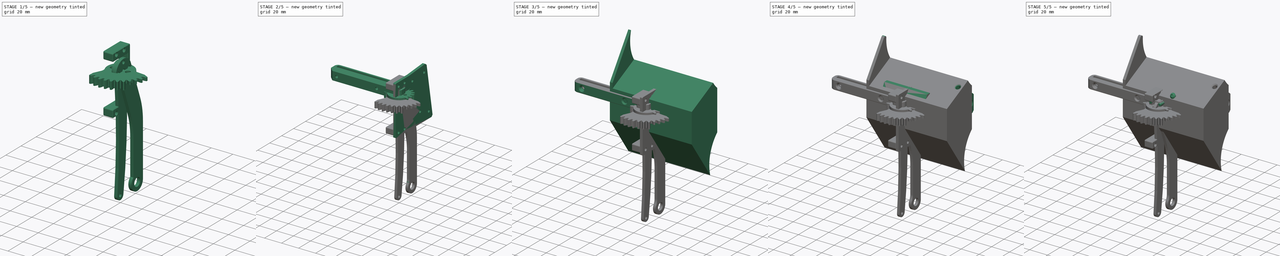
[diagram: build sequence overview — one tinted view per stage of 5, left to right]
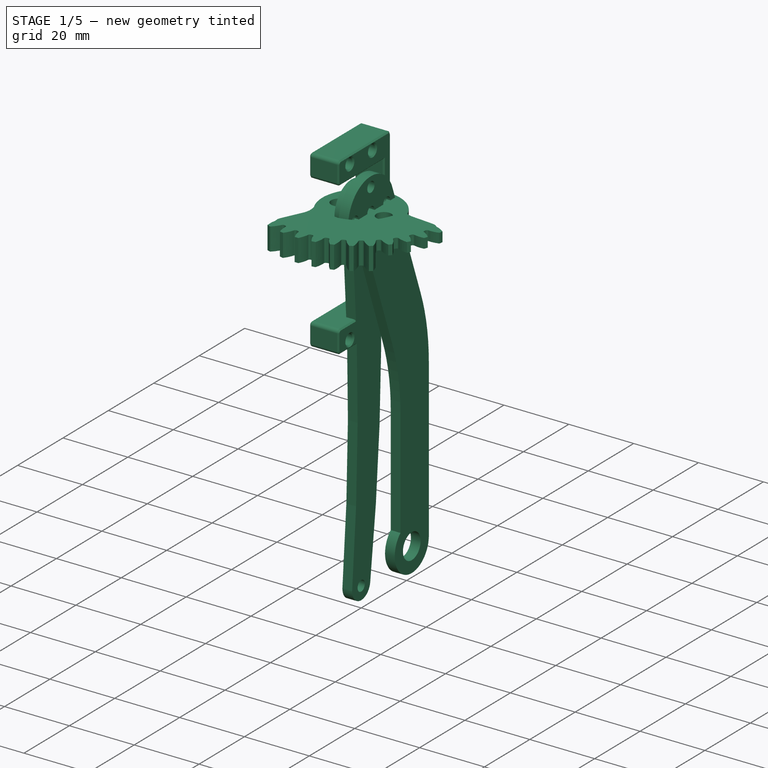
[diagram: stage 1 of 5 — iso view after this stage's code; geometry added in this stage tinted green]
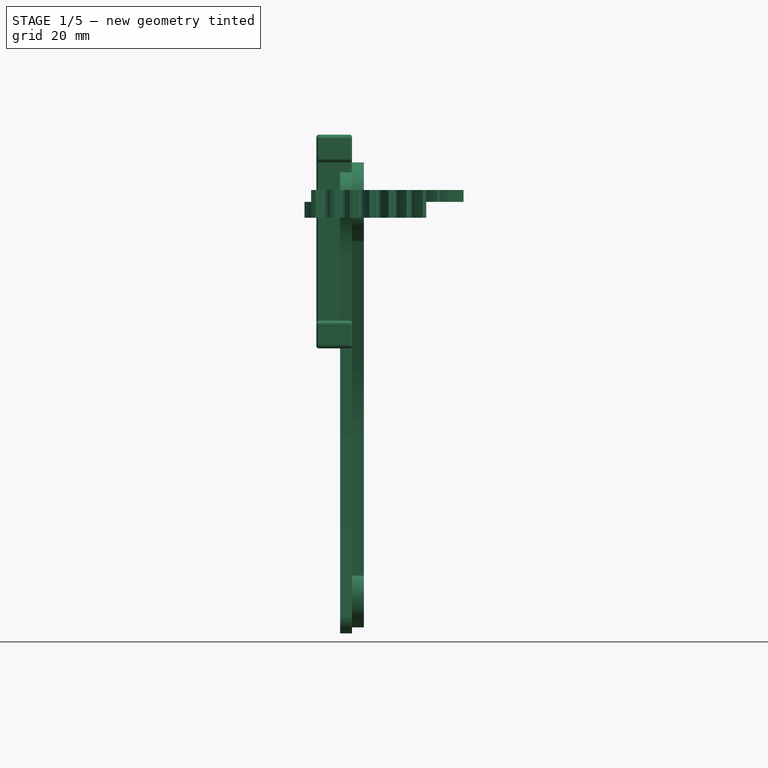
[diagram: stage 1 of 5 — front view after this stage's code; geometry added in this stage tinted green]
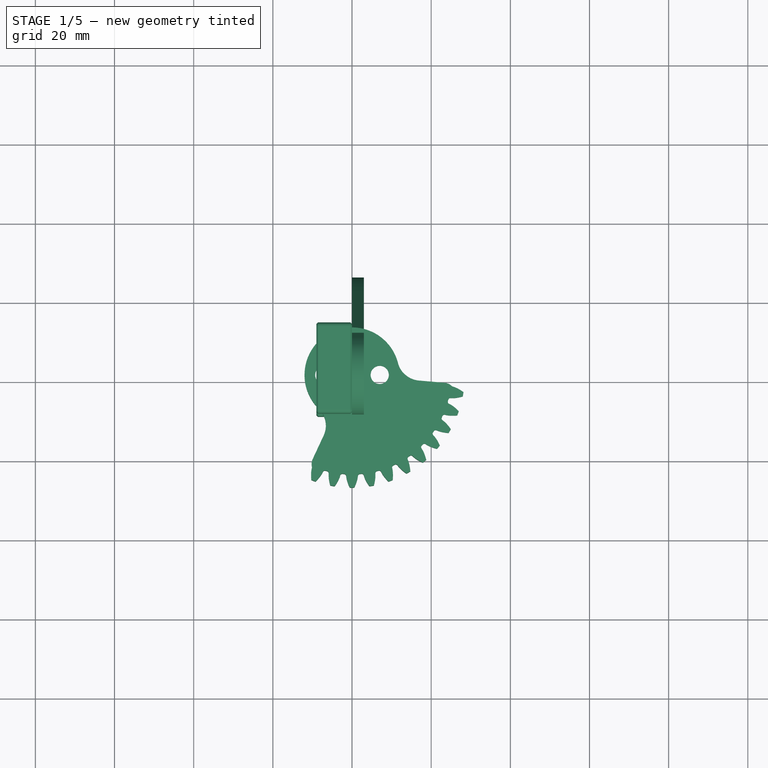
[diagram: stage 1 of 5 — top view after this stage's code; geometry added in this stage tinted green]
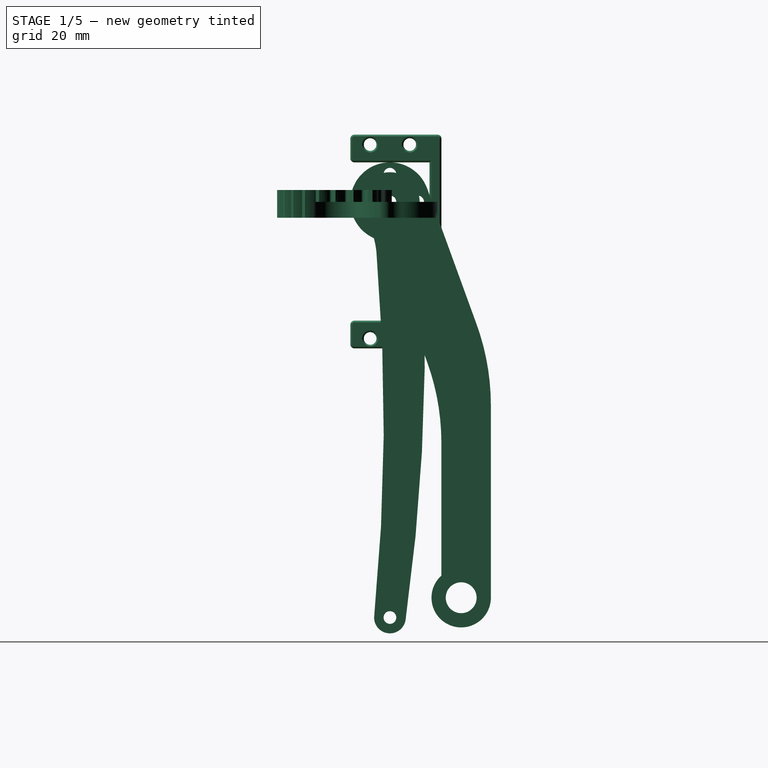
[diagram: stage 1 of 5 — right view after this stage's code; geometry added in this stage tinted green]
FCSTD DOCUMENT  (FreeCAD 1.2R20251223 (Git shallow))
Label: lifter
License: All rights reserved
LicenseURL: http://en.wikipedia.org/wiki/All_rights_reserved
objects: Sketcher::SketchObject×34, PartDesign::Pocket×25, App::Point×24, App::Link×19, PartDesign::Fillet×17, PartDesign::Chamfer×17, App::Part×14, Part::FeaturePython×13, PartDesign::Pad×12, TechDraw::DrawProjGroupItem×11, TechDraw::DrawProjGroup×11, PartDesign::Body×10, TechDraw::DrawSVGTemplate×4, TechDraw::DrawPage×4, App::DocumentObjectGroup×3, PartDesign::Plane×2, Part::Part2DObjectPython×2, PartDesign::ShapeBinder×1
note: 309 computed .brp shape members not serialized (recipe doc carries the construction recipe); baked Part::Feature solids carry a one-line shape summary decoded from their .brp
EXTERNAL_REF file=../mechanical-parts/generic-hardware.FCStd obj=Part015
EXTERNAL_REF file=../mechanical-parts/generic-hardware.FCStd obj=Body042
EXTERNAL_REF file=../mechanical-parts/generic-hardware.FCStd obj=Part034
EXTERNAL_REF file=../mechanical-parts/generic-hardware.FCStd obj=Body112
EXTERNAL_REF file=../mechanical-parts/generic-hardware.FCStd obj=Part__Feature001
EXTERNAL_REF file=../mechanical-parts/generic-hardware.FCStd obj=Body115
EXTERNAL_REF file=../mechanical-parts/generic-hardware.FCStd obj=Body116
EXTERNAL_REF file=../mechanical-parts/generic-hardware.FCStd obj=Part052

FEATURE [Sketcher::SketchObject] Sketch044
  ArcFitTolerance = 0
  ExternalTypes = [0]
  FullyConstrained = true
  MakeInternals = false
  MapMode = 5
  Placement = pos=(0,0,0) rot=(0.57735,0.57735,0.57735;2.0944rad)
  sketch-geometry (22):
    g0: LineSegment [constr] StartX=10 StartY=-37 StartZ=0 EndX=10 EndY=17 EndZ=0
    g1: LineSegment [constr] StartX=10 StartY=17 StartZ=0 EndX=-10 EndY=17 EndZ=0
    g2: LineSegment [constr] StartX=-10 StartY=17 StartZ=0 EndX=-10 EndY=-37 EndZ=0
    g3: LineSegment [constr] StartX=-10 StartY=-37 StartZ=0 EndX=10 EndY=-37 EndZ=0
    g4: GeomPoint [constr] X=0 Y=-10 Z=0
    g5: LineSegment StartX=-10 StartY=17 StartZ=0 EndX=13 EndY=17 EndZ=0
    g6: LineSegment StartX=13 StartY=17 StartZ=0 EndX=13 EndY=-37 EndZ=0
    g7: LineSegment StartX=13 StartY=-37 StartZ=0 EndX=-10 EndY=-37 EndZ=0
    g8: LineSegment StartX=-10 StartY=-37 StartZ=0 EndX=-10 EndY=-30 EndZ=0
    g9: LineSegment StartX=-10 StartY=-30 StartZ=0 EndX=10 EndY=-30 EndZ=0
    g10: LineSegment StartX=10 StartY=-30 StartZ=0 EndX=10 EndY=10 EndZ=0
    g11: LineSegment StartX=10 StartY=10 StartZ=0 EndX=-10 EndY=10 EndZ=0
    g12: LineSegment StartX=-10 StartY=10 StartZ=0 EndX=-10 EndY=17 EndZ=0
    g13: Circle CenterX=-5 CenterY=14.5 CenterZ=0 NormalX=0 NormalY=0 NormalZ=1 AngleXU=0 Radius=1.6
    g14: Circle CenterX=5 CenterY=14.5 CenterZ=0 NormalX=0 NormalY=0 NormalZ=1 AngleXU=0 Radius=1.6
    g15: Circle CenterX=-5 CenterY=-34.5 CenterZ=0 NormalX=0 NormalY=0 NormalZ=1 AngleXU=0 Radius=1.6
    g16: Circle CenterX=5 CenterY=-34.5 CenterZ=0 NormalX=0 NormalY=0 NormalZ=1 AngleXU=0 Radius=1.6
    g17: LineSegment [constr] StartX=-5 StartY=-34.5 StartZ=0 EndX=5 EndY=-34.5 EndZ=0
    g18: LineSegment [constr] StartX=5 StartY=-34.5 StartZ=0 EndX=5 EndY=14.5 EndZ=0
    g19: LineSegment [constr] StartX=5 StartY=14.5 StartZ=0 EndX=-5 EndY=14.5 EndZ=0
    g20: LineSegment [constr] StartX=-5 StartY=14.5 StartZ=0 EndX=-5 EndY=-34.5 EndZ=0
    g21: GeomPoint [constr] X=0 Y=-10 Z=0
  constraints (55):
    c: Coincident(g0,g1)
    c: Coincident(g1,g2)
    c: Coincident(g2,g3)
    c: Coincident(g3,g0)
    c: Vertical(g0)
    c: Vertical(g2)
    c: Horizontal(g1)
    c: Horizontal(g3)
    c: Symmetric(g2,g0,g4)
    c: PointOnObject(g4,g-2)
    c: DistanceY(g-1,g1) = 17
    c: DistanceX(g1,g1) = 20
    c: Coincident(g1,g5)
    c: Horizontal(g5)
    c: Coincident(g5,g6)
    c: Vertical(g6)
    c: Coincident(g6,g7)
    c: Coincident(g7,g2)
    c: Horizontal(g7)
    c: Coincident(g7,g8)
    c: PointOnObject(g8,g2)
    c: Coincident(g8,g9)
    c: PointOnObject(g9,g0)
    c: Horizontal(g9)
    c: Coincident(g9,g10)
    c: PointOnObject(g10,g0)
    c: Coincident(g10,g11)
    c: PointOnObject(g11,g2)
    c: Horizontal(g11)
    c: Coincident(g11,g12)
    c: Coincident(g12,g5)
    c: DistanceY(g-1,g10) = 10
    c: Equal(g12,g8)
    c: Distance(g5,g0) = 3
    c: Equal(g16,g15)
    c: Equal(g15,g13)
    c: Equal(g13,g14)
    c: Diameter(g13) = 3.2
    c: Coincident(g17,g18)
    c: Coincident(g18,g19)
    c: Coincident(g19,g20)
    c: Coincident(g20,g17)
    c: Horizontal(g17)
    c: Horizontal(g19)
    c: Vertical(g18)
    c: Vertical(g20)
    c: Symmetric(g19,g17,g21)
    c: Coincident(g21,g4)
    c: Coincident(g18,g14)
    c: Coincident(g17,g16)
    c: Coincident(g15,g17)
    c: Coincident(g19,g13)
    c: DistanceX(g19,g19) = 10
    c: DistanceY(g-1,g14) = 14.5
    c: DistanceY(g2,g-1) = 37
FEATURE [PartDesign::Pad] Pad025
  Direction = (1,1e-16,-1e-16)
  Length = 9
  Length2 = 10
  Placement = pos=(0,0,0) rot=(0.57735,0.57735,0.57735;2.0944rad)
  Profile = -> Sketch044
  ReferenceAxis = -> Sketch044 [N_Axis]
  Refine = true
  Reversed = true
  SideType = 0
  Suppressed = false
  Type = 0
  Type2 = 0
FEATURE [PartDesign::Fillet] Fillet013
  Base = -> Pad025 [Edge1,Edge20,Edge11,Edge8,Edge5,Edge2]
  BaseFeature = -> Pad025
  Placement = pos=(0,0,0) rot=(0.57735,0.57735,0.57735;2.0944rad)
  Radius = 1
  Refine = true
  SupportTransform = false
  Suppressed = false
  UseAllEdges = false
FEATURE [PartDesign::Chamfer] Chamfer007
  Angle = 45
  Base = -> Fillet013 [Face2,Face5]
  BaseFeature = -> Fillet013
  ChamferType = 0
  FlipDirection = false
  Placement = pos=(0,0,0) rot=(0.57735,0.57735,0.57735;2.0944rad)
  Refine = true
  Size = 0.4
  Size2 = 1
  SupportTransform = false
  Suppressed = false
  UseAllEdges = false
FEATURE [App::Link] Link033  label="ClipRail001"
  LinkPlacement = pos=(0,-2.57492e-05,216) rot=(0,0,1;0rad)
  LinkedObject = -> Body026
  Placement = pos=(0,-2.57492e-05,216) rot=(0,0,1;0rad)
FEATURE [App::Link] Link034  label="ClipRail002"
  LinkPlacement = pos=(2.59299e-05,-8.10623e-06,136) rot=(0.866025,0.5,0;3.14159rad)
  LinkedObject = -> Body026
  Placement = pos=(2.59299e-05,-8.10623e-06,136) rot=(0.866025,0.5,0;3.14159rad)
FEATURE [Sketcher::SketchObject] Sketch049
  ArcFitTolerance = 0
  ExternalTypes = [0]
  FullyConstrained = true
  MakeInternals = false
  MapMode = 5
  Placement = pos=(0,0,0) rot=(0.57735,0.57735,0.57735;2.0944rad)
  sketch-geometry (14):
    g0: ArcOfCircle CenterX=0 CenterY=0 CenterZ=0 NormalX=0 NormalY=0 NormalZ=1 AngleXU=0 Radius=10 StartAngle=0.349066 EndAngle=4.53786
    g1: LineSegment StartX=9.39693 StartY=3.4202 StartZ=0 EndX=25.5 EndY=-40.8226 EndZ=0
    g2: LineSegment StartX=25.5 StartY=-40.8226 StartZ=0 EndX=25.5 EndY=-100 EndZ=0
    g3: LineSegment StartX=-1.73648 StartY=-9.84808 StartZ=0 EndX=13 EndY=-50.3362 EndZ=0
    g4: LineSegment StartX=13 StartY=-50.3362 StartZ=0 EndX=13 EndY=-94.4098 EndZ=0
    g5: ArcOfCircle CenterX=18 CenterY=-100 CenterZ=0 NormalX=0 NormalY=0 NormalZ=1 AngleXU=0 Radius=7.5 StartAngle=2.30052 EndAngle=6.28319
    g6: LineSegment [constr] StartX=0 StartY=0 StartZ=0 EndX=18 EndY=-100 EndZ=0
    g7: Circle [constr] CenterX=0 CenterY=0 CenterZ=0 NormalX=0 NormalY=0 NormalZ=1 AngleXU=0 Radius=7
    g8: Circle CenterX=0 CenterY=7 CenterZ=0 NormalX=0 NormalY=0 NormalZ=1 AngleXU=0 Radius=1.6
    g9: Circle CenterX=7 CenterY=0 CenterZ=0 NormalX=0 NormalY=0 NormalZ=1 AngleXU=0 Radius=1.6
    g10: Circle CenterX=0 CenterY=-7 CenterZ=0 NormalX=0 NormalY=0 NormalZ=1 AngleXU=0 Radius=1.6
    g11: Circle CenterX=-7 CenterY=0 CenterZ=0 NormalX=0 NormalY=0 NormalZ=1 AngleXU=0 Radius=1.6
    g12: Circle CenterX=0 CenterY=0 CenterZ=0 NormalX=0 NormalY=0 NormalZ=1 AngleXU=0 Radius=1.6
    g13: Circle CenterX=18 CenterY=-100 CenterZ=0 NormalX=0 NormalY=0 NormalZ=1 AngleXU=0 Radius=3.9
  constraints (37):
    c: Coincident(g0,g-1)
    c: Tangent(g0,g1) = 1.5708
    c: Coincident(g1,g2)
    c: Vertical(g2)
    c: Coincident(g3,g4)
    c: Vertical(g4)
    c: Radius(g0) = 10
    c: DistanceX(g0,g5) = 18
    c: Radius(g5) = 7.5
    c: Parallel(g1,g3)
    c: Coincident(g4,g5)
    c: DistanceX(g4,g5) = 5
    c: Tangent(g2,g5) = 1.5708
    c: Coincident(g3,g0)
    c: Distance(g1,g3) = 15
    c: Coincident(g6,g0)
    c: Coincident(g6,g5)
    c: Angle(g3,g4) = 2.79253
    c: DistanceY(g5,g0) = 100
    c: Coincident(g7,g0)
    c: Diameter(g7) = 14
    c: PointOnObject(g8,g7)
    c: PointOnObject(g9,g7)
    c: PointOnObject(g10,g7)
    c: PointOnObject(g11,g7)
    c: Coincident(g12,g0)
    c: Diameter(g12) = 3.2
    c: Equal(g12,g10)
    c: Equal(g10,g9)
    c: Equal(g9,g8)
    c: Equal(g8,g11)
    c: PointOnObject(g11,g-1)
    c: PointOnObject(g8,g-2)
    c: PointOnObject(g10,g-2)
    c: PointOnObject(g9,g-1)
    c: Coincident(g13,g5)
    c: Diameter(g13) = 7.8
FEATURE [PartDesign::Pad] Pad027
  Direction = (1,1e-16,-1e-16)
  Length = 3
  Length2 = 10
  Placement = pos=(0,0,0) rot=(0.57735,0.57735,0.57735;2.0944rad)
  Profile = -> Sketch049
  ReferenceAxis = -> Sketch049 [N_Axis]
  Refine = true
  SideType = 0
  Suppressed = false
  Type = 0
  Type2 = 0
FEATURE [PartDesign::Fillet] Fillet016
  Base = -> Pad027 [Edge5,Edge14]
  BaseFeature = -> Pad027
  Placement = pos=(0,0,0) rot=(0.57735,0.57735,0.57735;2.0944rad)
  Radius = 60
  Refine = true
  SupportTransform = false
  Suppressed = false
  UseAllEdges = false
FEATURE [App::DocumentObjectGroup] Group005  label="Visserie"
  Group = -> [Screw016,Screw017,Screw018,Screw]
FEATURE [Sketcher::SketchObject] Sketch
  ArcFitTolerance = 1e-06
  AttachmentSupport = -> [YZ_Plane051]
  ExternalTypes = [0]
  FullyConstrained = true
  MakeInternals = false
  MapMode = 5
  Placement = pos=(0,0,0) rot=(0.57735,0.57735,0.57735;2.0944rad)
  sketch-geometry (6):
    g0: Circle CenterX=0 CenterY=0 CenterZ=0 NormalX=0 NormalY=0 NormalZ=1 AngleXU=0 Radius=1.6
    g1: ArcOfCircle CenterX=0 CenterY=0 CenterZ=0 NormalX=0 NormalY=0 NormalZ=1 AngleXU=0 Radius=7.5 StartAngle=0.0732126 EndAngle=4.14985
    g2: ArcOfCircle CenterX=-501.561 CenterY=-55.6722 CenterZ=0 NormalX=0 NormalY=0 NormalZ=1 AngleXU=0 Radius=500 StartAngle=6.18437 EndAngle=6.382
    g3: ArcOfCircle CenterX=-491.181 CenterY=-36.025 CenterZ=0 NormalX=0 NormalY=0 NormalZ=1 AngleXU=0 Radius=500 StartAngle=6.14367 EndAngle=6.3564
    g4: ArcOfCircle CenterX=0 CenterY=-105 CenterZ=0 NormalX=0 NormalY=0 NormalZ=1 AngleXU=0 Radius=4 StartAngle=3.1416 EndAngle=6.14367
    g5: Circle CenterX=0 CenterY=-105 CenterZ=0 NormalX=0 NormalY=0 NormalZ=1 AngleXU=0 Radius=1.6
  constraints (17):
    c: Coincident(g0,g-1)
    c: Diameter(g0) = 3.2
    c: Coincident(g1,g0)
    c: Tangent(g3,g1) = -1.5708
    c: Radius(g1) = 7.5
    c: Coincident(g5,g4)
    c: Tangent(g4,g3) = -1.5708
    c: Diameter(g5) = 3.2
    c: Radius(g4) = 4
    c: PointOnObject(g4,g-2)
    c: DistanceY(g4,g0) = 105
    c: Radius(g2) = 500
    c: Radius(g3) = 500
    c: Coincident(g1,g2)
    c: DistanceX(g1,g0) = 4
    c: Coincident(g2,g4)
    c: Vertical(g2,g1)
FEATURE [PartDesign::Pad] Pad
  AlongSketchNormal = false
  Direction = (1,0,0)
  Length = 3
  Length2 = 10
  Placement = pos=(0,0,0) rot=(1,1,1;2.0944rad)
  Profile = -> Sketch
  ReferenceAxis = -> Sketch [N_Axis]
  Refine = true
  Reversed = true
  SideType = 0
  Suppressed = false
  Type = 0
  Type2 = 0
FEATURE [PartDesign::Fillet] Fillet
  Base = -> Pad [Edge2]
  BaseFeature = -> Pad
  Placement = pos=(0,0,0) rot=(1,1,1;2.0944rad)
  Radius = 20
  Refine = true
  SupportTransform = false
  Suppressed = false
  UseAllEdges = false
FEATURE [PartDesign::Body] Body031  label="RoueMenante18Dents"
  AllowCompound = true
  Group = -> [InvoluteGear,Pad032,Sketch066,Pocket033,Sketch067,Pocket034,Sketch068,Pocket035]
  Origin = -> Origin068
  Placement = pos=(0,0,0) rot=(0.171088,0.970288,0.171088;1.60095rad)
  Tip = -> Pocket035
FEATURE [Part::Part2DObjectPython] InvoluteGear001  # Draft 2D object (typed FeaturePython)
  AddendumCoefficient = 1
  DedendumCoefficient = 1.25
  ExternalGear = true
  HighPrecision = true
  Modules = 1.5
  NumberOfTeeth = 36
  PressureAngle = 20
  ProfileShiftCoefficient = 0
  RootFilletCoefficient = 0.38
FEATURE [PartDesign::Pad] Pad033
  AlongSketchNormal = false
  Direction = (0,0,1)
  Length = 3
  Length2 = 2
  Profile = -> InvoluteGear001
  ReferenceAxis = -> InvoluteGear001 [N_Axis]
  Refine = true
  SideType = 1
  Suppressed = false
  Type = 0
  Type2 = 0
FEATURE [Sketcher::SketchObject] Sketch069
  ArcFitTolerance = 1e-06
  AttachmentSupport = -> [XY_Plane058]
  ExternalGeometry = -> [Pad033]
  ExternalTypes = [0]
  FullyConstrained = false
  MakeInternals = true
  MapMode = 5
  sketch-geometry (4):
    g0: ArcOfCircle CenterX=0 CenterY=0 CenterZ=0 NormalX=0 NormalY=0 NormalZ=1 AngleXU=0 Radius=12 StartAngle=6.19592 EndAngle=10.5592
    g1: ArcOfCircle CenterX=0 CenterY=0 CenterZ=0 NormalX=0 NormalY=0 NormalZ=1 AngleXU=0 Radius=30 StartAngle=6.19592 EndAngle=10.5592
    g2: LineSegment StartX=-12.6785 StartY=-27.1892 StartZ=0 EndX=-5.07142 EndY=-10.8757 EndZ=0
    g3: LineSegment StartX=11.9543 StartY=-1.04587 StartZ=0 EndX=29.8858 EndY=-2.61467 EndZ=0
  constraints (11):
    c: Coincident(g0,g-1)
    c: Coincident(g1,g0)
    c: Radius(g1) = 30
    c: Coincident(g2,g1)
    c: Coincident(g2,g0)
    c: Coincident(g3,g0)
    c: Coincident(g3,g1)
    c: PointOnObject(g0,g2)
    c: Symmetric(g-3,g-3,g3)
    c: Angle(g2,g3) = 1.91986
    c: Radius(g0) = 12
FEATURE [PartDesign::Pocket] Pocket036
  AlongSketchNormal = false
  BaseFeature = -> Pad033
  Direction = (0,0,-1)
  Length = 5
  Length2 = 10
  Profile = -> Sketch069
  ReferenceAxis = -> Sketch069 [N_Axis]
  Refine = true
  SideType = 2
  Suppressed = false
  Type = 1
  Type2 = 0
FEATURE [PartDesign::Fillet] Fillet025
  Base = -> Pocket036 [Edge273,Edge274]
  BaseFeature = -> Pocket036
  Radius = 6
  Refine = true
  SupportTransform = false
  Suppressed = false
  UseAllEdges = false
FEATURE [Sketcher::SketchObject] Sketch070
  ArcFitTolerance = 1e-06
  AttachmentSupport = -> [Fillet025]
  ExternalGeometry = -> [Fillet025]
  ExternalTypes = [0]
  FullyConstrained = true
  MakeInternals = true
  MapMode = 5
  Placement = pos=(0,0,3) rot=(0,0,1;0rad)
  sketch-geometry (1):
    g0: Circle CenterX=0 CenterY=0 CenterZ=0 NormalX=0 NormalY=0 NormalZ=1 AngleXU=0 Radius=13
  constraints (2):
    c: Coincident(g0,g-1)
    c: Diameter(g0) = 26
FEATURE [PartDesign::Pocket] Pocket037
  AlongSketchNormal = false
  BaseFeature = -> Fillet025
  Direction = (0,0,-1)
  Length = 3
  Length2 = 10
  Profile = -> Sketch070
  ReferenceAxis = -> Sketch070 [N_Axis]
  Refine = true
  SideType = 0
  Suppressed = false
  Type = 0
  Type2 = 0
FEATURE [Sketcher::SketchObject] Sketch071
  ArcFitTolerance = 1e-06
  AttachmentSupport = -> [Pocket037]
  ExternalTypes = [0]
  FullyConstrained = true
  MakeInternals = true
  MapMode = 5
  sketch-geometry (6):
    g0: Circle [constr] CenterX=0 CenterY=0 CenterZ=0 NormalX=0 NormalY=0 NormalZ=1 AngleXU=0 Radius=7
    g1: Circle CenterX=0 CenterY=0 CenterZ=0 NormalX=0 NormalY=0 NormalZ=1 AngleXU=0 Radius=1.6
    g2: Circle CenterX=0 CenterY=7 CenterZ=0 NormalX=0 NormalY=0 NormalZ=1 AngleXU=0 Radius=2.3
    g3: Circle CenterX=7 CenterY=0 CenterZ=0 NormalX=0 NormalY=0 NormalZ=1 AngleXU=0 Radius=2.3
    g4: Circle CenterX=0 CenterY=-7 CenterZ=0 NormalX=0 NormalY=0 NormalZ=1 AngleXU=0 Radius=2.3
    g5: Circle CenterX=-7 CenterY=0 CenterZ=0 NormalX=0 NormalY=0 NormalZ=1 AngleXU=0 Radius=2.3
  constraints (16):
    c: Coincident(g0,g-1)
    c: Diameter(g0) = 14
    c: Coincident(g1,g0)
    c: PointOnObject(g2,g0)
    c: PointOnObject(g3,g0)
    c: PointOnObject(g4,g0)
    c: PointOnObject(g5,g0)
    c: Equal(g5,g2)
    c: Equal(g5,g3)
    c: Equal(g5,g4)
    c: Diameter(g5) = 4.6
    c: PointOnObject(g4,g-2)
    c: PointOnObject(g3,g-1)
    c: PointOnObject(g5,g-1)
    c: PointOnObject(g2,g-2)
    c: Diameter(g1) = 3.2
FEATURE [PartDesign::Pocket] Pocket038
  AlongSketchNormal = false
  BaseFeature = -> Pocket037
  Direction = (0,0,-1)
  Length = 5
  Length2 = 10
  Profile = -> Sketch071
  ReferenceAxis = -> Sketch071 [N_Axis]
  Refine = true
  SideType = 0
  Suppressed = false
  Type = 0
  Type2 = 0
FEATURE [PartDesign::Fillet] Fillet026
  Base = -> Pocket038 [Edge287,Edge108]
  BaseFeature = -> Pocket038
  Radius = 3
  Refine = true
  SupportTransform = false
  Suppressed = false
  UseAllEdges = false
FEATURE [PartDesign::Body] Body024  label="ServoLifterPlate"
  AllowCompound = true
  Group = -> [Sketch042,Pad024,Sketch043,Pocket017,ShapeBinder001,Fillet012,Chamfer006,Sketch073,Pocket039]
  Origin = -> Origin044
  Placement = pos=(-8,0,0) rot=(0,0,1;0rad)
  Tip = -> Pocket039
FEATURE [PartDesign::Pad] Pad034
  AlongSketchNormal = false
  BaseFeature = -> Fillet026
  Direction = (0,0,-1)
  Length = 2
  Length2 = 10
  Profile = -> Fillet026 [Face96]
  Refine = true
  SideType = 0
  Suppressed = false
  Type = 0
  Type2 = 0
FEATURE [TechDraw::DrawSVGTemplate] Template002
  Height = 210
  Orientation = 1
  Template = <path>
  Width = 297
FEATURE [TechDraw::DrawProjGroupItem] ProjItem007  label="Front007"
  CoarseView = false
  Direction = (1,0,0)
  Focus = 100
  HardHidden = false
  IsoCount = 0
  IsoHidden = false
  IsoVisible = false
  LockPosition = true
  Perspective = false
  Rotation = 0
  RotationVector = (0,1,0)
  ScaleType = 2
  ScrubCount = 0
  SeamHidden = false
  SeamVisible = true
  SmoothHidden = false
  SmoothVisible = true
  Source = -> [Pocket039]
  Type = 0
  X = 0
  XDirection = (0,1,0)
  Y = 0
FEATURE [TechDraw::DrawProjGroup] ProjGroup007
  Anchor = -> ProjItem007
  AutoDistribute = true
  LockPosition = false
  ProjectionType = 0
  Rotation = 0
  ScaleType = 0
  Source = -> [Pocket039]
  Views = -> [ProjItem007]
  X = 31.4837
  Y = 177.098
  spacingX = 15
  spacingY = 15
FEATURE [TechDraw::DrawPage] Page002
  KeepUpdated = true
  NextBalloonIndex = 1
  ProjectionType = 0
  Template = -> Template002
  Views = -> [ProjGroup007]
FEATURE [App::DocumentObjectGroup] Group006  label="Laser"
  Group = -> [Page,Page001,Page002]
FEATURE [TechDraw::DrawSVGTemplate] Template003
  Height = 210
  Orientation = 1
  Template = <path>
  Width = 297
FEATURE [TechDraw::DrawProjGroupItem] ProjItem008  label="Front008"
  CoarseView = false
  Direction = (1,0,0)
  Focus = 100
  HardHidden = false
  IsoCount = 0
  IsoHidden = false
  IsoVisible = false
  LockPosition = true
  Perspective = false
  Rotation = 0
  RotationVector = (0,1,0)
  ScaleType = 2
  ScrubCount = 0
  SeamHidden = false
  SeamVisible = true
  SmoothHidden = false
  SmoothVisible = true
  Source = -> [Fillet017]
  Type = 0
  X = 0
  XDirection = (0,1,0)
  Y = 0
FEATURE [TechDraw::DrawProjGroup] ProjGroup008
  Anchor = -> ProjItem008
  AutoDistribute = true
  LockPosition = false
  ProjectionType = 0
  Rotation = 0
  ScaleType = 0
  Source = -> [Fillet017]
  Views = -> [ProjItem008]
  X = 148.5
  Y = 105
  spacingX = 15
  spacingY = 15
FEATURE [TechDraw::DrawProjGroupItem] ProjItem009  label="Front009"
  CoarseView = false
  Direction = (1,0,0)
  Focus = 100
  HardHidden = false
  IsoCount = 0
  IsoHidden = false
  IsoVisible = false
  LockPosition = true
  Perspective = false
  Rotation = 0
  RotationVector = (0,1,0)
  ScaleType = 2
  ScrubCount = 0
  SeamHidden = false
  SeamVisible = true
  SmoothHidden = false
  SmoothVisible = true
  Source = -> [Fillet017]
  Type = 0
  X = 0
  XDirection = (0,1,0)
  Y = 0
FEATURE [TechDraw::DrawProjGroup] ProjGroup009
  Anchor = -> ProjItem009
  AutoDistribute = true
  LockPosition = false
  ProjectionType = 0
  Rotation = 0
  ScaleType = 0
  Source = -> [Fillet017]
  Views = -> [ProjItem009]
  X = 91.7412
  Y = 99.0087
  spacingX = 15
  spacingY = 15
FEATURE [TechDraw::DrawProjGroupItem] ProjItem010  label="Front010"
  CoarseView = false
  Direction = (1,0,0)
  Focus = 100
  HardHidden = false
  IsoCount = 0
  IsoHidden = false
  IsoVisible = false
  LockPosition = true
  Perspective = false
  Rotation = 0
  RotationVector = (0,1,0)
  ScaleType = 2
  ScrubCount = 0
  SeamHidden = false
  SeamVisible = true
  SmoothHidden = false
  SmoothVisible = true
  Source = -> [Fillet]
  Type = 0
  X = 0
  XDirection = (0,1,0)
  Y = 0
FEATURE [TechDraw::DrawProjGroup] ProjGroup010
  Anchor = -> ProjItem010
  AutoDistribute = true
  LockPosition = false
  ProjectionType = 0
  Rotation = 0
  ScaleType = 0
  Source = -> [Fillet]
  Views = -> [ProjItem010]
  X = 200.516
  Y = 101.181
  spacingX = 15
  spacingY = 15
FEATURE [TechDraw::DrawPage] Page003
  KeepUpdated = true
  NextBalloonIndex = 1
  ProjectionType = 0
  Template = -> Template003
  Views = -> [ProjGroup008,ProjGroup009,ProjGroup010]
FEATURE [Sketcher::SketchObject] Sketch074
  ArcFitTolerance = 1e-06
  AttachmentSupport = -> [Pad034]
  ExternalTypes = [0]
  FullyConstrained = true
  MakeInternals = false
  MapMode = 5
  Placement = pos=(0,0,-4) rot=(1,0,0;3.14159rad)
  sketch-geometry (6):
    g0: Circle [constr] CenterX=18.4508 CenterY=11.9821 CenterZ=0 NormalX=0 NormalY=0 NormalZ=1 AngleXU=0 Radius=7.5
    g1: ArcOfCircle CenterX=0 CenterY=0 CenterZ=0 NormalX=0 NormalY=0 NormalZ=1 AngleXU=0 Radius=29.5 StartAngle=0 EndAngle=0.575959
    g2: ArcOfCircle CenterX=0 CenterY=0 CenterZ=0 NormalX=0 NormalY=0 NormalZ=1 AngleXU=0 Radius=14.5 StartAngle=0 EndAngle=0.575959
    g3: ArcOfCircle CenterX=18.4508 CenterY=11.9821 CenterZ=0 NormalX=0 NormalY=0 NormalZ=1 AngleXU=0 Radius=7.5 StartAngle=0.575959 EndAngle=3.71755
    g4: LineSegment StartX=14.5 StartY=0 StartZ=0 EndX=29.5 EndY=0 EndZ=0
    g5: LineSegment [constr] StartX=0 StartY=0 StartZ=0 EndX=18.4508 EndY=11.9821 EndZ=0
  constraints (16):
    c: Diameter(g0) = 15
    c: Distance(g-1,g0) = 22
    c: Coincident(g1,g-1)
    c: Coincident(g2,g1)
    c: Tangent(g2,g0) = 1.5708
    c: Tangent(g1,g0) = -1.5708
    c: Coincident(g3,g0)
    c: Coincident(g3,g2)
    c: Coincident(g4,g2)
    c: Coincident(g4,g1)
    c: PointOnObject(g1,g-1)
    c: PointOnObject(g2,g-1)
    c: Coincident(g5,g1)
    c: Coincident(g5,g3)
    c: Angle(g-1,g5) = 0.575959
    c: PointOnObject(g3,g5)
FEATURE [PartDesign::Pocket] Pocket040
  AlongSketchNormal = false
  BaseFeature = -> Pad034
  Direction = (0,0,1)
  Length = 4
  Length2 = 10
  Profile = -> Sketch074
  ReferenceAxis = -> Sketch074 [N_Axis]
  Refine = true
  SideType = 0
  Suppressed = false
  Type = 0
  Type2 = 0
FEATURE [PartDesign::Fillet] Fillet027
  Base = -> Pocket040 [Edge102]
  BaseFeature = -> Pocket040
  Radius = 3
  Refine = true
  SupportTransform = false
  Suppressed = false
  UseAllEdges = false
FEATURE [PartDesign::Chamfer] Chamfer021
  Angle = 45
  Base = -> Fillet027 [Edge71,Edge70,Edge73,Edge74]
  BaseFeature = -> Fillet027
  ChamferType = 0
  FlipDirection = false
  Refine = true
  Size = 2
  Size2 = 1
  SupportTransform = false
  Suppressed = false
  UseAllEdges = false
FEATURE [PartDesign::Body] Body032  label="RoueMenee36Dents"
  AllowCompound = true
  Group = -> [InvoluteGear001,Pad033,Sketch069,Pocket036,Fillet025,Sketch070,Pocket037,Sketch071,Pocket038,Fillet026,Pad034,Sketch074,Pocket040,Fillet027,Chamfer021]
  Origin = -> Origin069
  Placement = pos=(4.86e-14,1.15e-14,8e-15) rot=(0.57735,-0.57735,0.57735;4.18879rad)
  Tip = -> Chamfer021
FEATURE [App::Part] Part023
  Group = -> [Link042,Link040,Body027,Link045,Body032]
  Origin = -> Origin067
  Placement = pos=(0,31,-26) rot=(1,0,0;6.10865rad)
FEATURE [App::Part] Part014  label="BielleSuperieure"
  Group = -> [Link041,Part023,Body031]
  Origin = -> Origin054
FEATURE [App::Part] Part012  label="EnsembleBielle"
  Group = -> [Part014,Part]
  Origin = -> Origin051
FEATURE [App::Point] Origin070  label="Origine"
  Role = Origin
FEATURE [App::Point] Origin071  label="Origine"
  Role = Origin
FEATURE [App::Point] Origin072  label="Origine"
  Role = Origin
FEATURE [App::Point] Origin073  label="Origine"
  Role = Origin
FEATURE [App::Point] Origin074  label="Origine"
  Role = Origin
FEATURE [App::Point] Origin075  label="Origine"
  Role = Origin
FEATURE [App::Point] Origin076  label="Origine"
  Role = Origin
FEATURE [App::Point] Origin077  label="Origine"
  Role = Origin
FEATURE [App::Point] Origin078  label="Origine"
  Role = Origin
FEATURE [App::Point] Origin079  label="Origine"
  Role = Origin
FEATURE [App::Point] Origin080  label="Origine"
  Role = Origin
FEATURE [App::Point] Origin081  label="Origine"
  Role = Origin
FEATURE [App::Point] Origin082  label="Origine"
  Role = Origin
FEATURE [App::Point] Origin083  label="Origine"
  Role = Origin
FEATURE [App::Point] Origin084  label="Origine"
  Role = Origin
FEATURE [App::Point] Origin085  label="Origine"
  Role = Origin
FEATURE [App::Point] Origin086  label="Origine"
  Role = Origin
FEATURE [App::Point] Origin087  label="Origine"
  Role = Origin
FEATURE [App::Point] Origin088  label="Origine"
  Role = Origin
FEATURE [App::Point] Origin089  label="Origine"
  Role = Origin
FEATURE [App::Point] Origin090  label="Origine"
  Role = Origin
FEATURE [App::Point] Origin091  label="Origine"
  Role = Origin
FEATURE [App::Point] Origin092  label="Origine"
  Role = Origin
FEATURE [App::Point] Origin093  label="Origine"
  Role = Origin
FEATURE [Sketcher::SketchObject] Sketch075
  ArcFitTolerance = 1e-06
  AttachmentSupport = -> [Origin045]
  ExternalGeometry = -> [Chamfer007]
  ExternalTypes = [0]
  FullyConstrained = true
  MakeInternals = false
  MapMode = 5
FEATURE [PartDesign::Body] Body025  label="ServoLifterSpacer"
  AllowCompound = true
  Group = -> [Sketch044,Pad025,Fillet013,Chamfer007,Sketch075]
  Origin = -> Origin045
  Placement = pos=(-8,0,0) rot=(0,0,1;0rad)
  Tip = -> Chamfer007
FEATURE [App::Part] Part009  label="ServoMotorLifter"
  Group = -> [Body024,Body025,Group005,Screw016,Screw017,Screw018,Part012,Link,Screw]
  Origin = -> Origin043
  Placement = pos=(48,27,282.6) rot=(0,0,1;0rad)
FEATURE [App::Part] Part010  label="Lifter"
  Group = -> [Part009,Part011,Part013,DatumPlane001,Part015]
  Origin = -> Origin046
note: 4 file-system paths scrubbed to <path> (originals preserved in the JSON sidecar)

RESOLVED EXTERNAL PARTS (link-assembly join: the EXTERNAL_REF files above that resolve inside this repo's crawl, each included once):
---- part ../mechanical-parts/generic-hardware.FCStd = doc fcstd_c3dd29bfd943 (311813 chars; too large to inline — full recipe in that document) ----
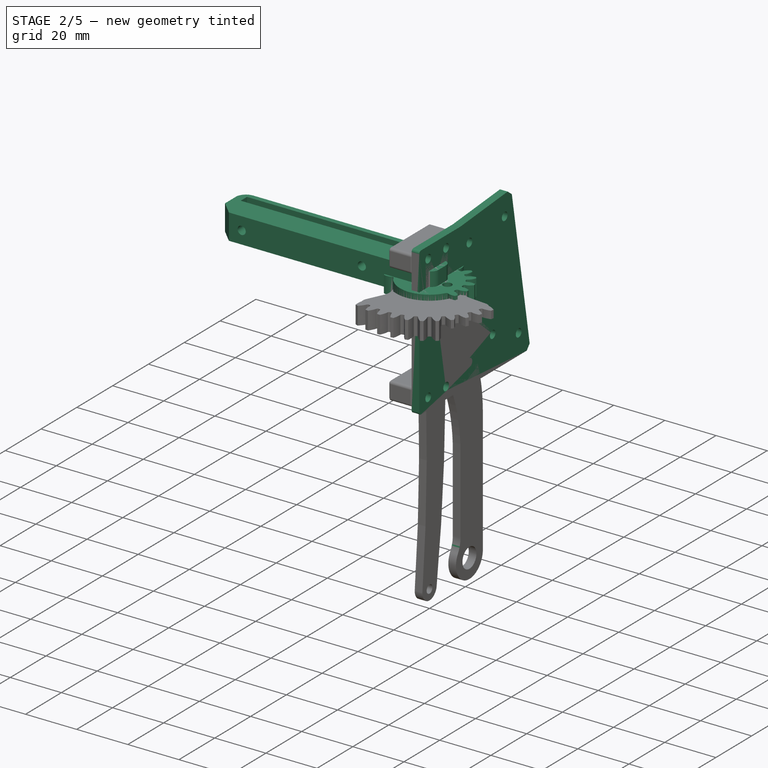
[diagram: stage 2 of 5 — iso view after this stage's code; geometry added in this stage tinted green]
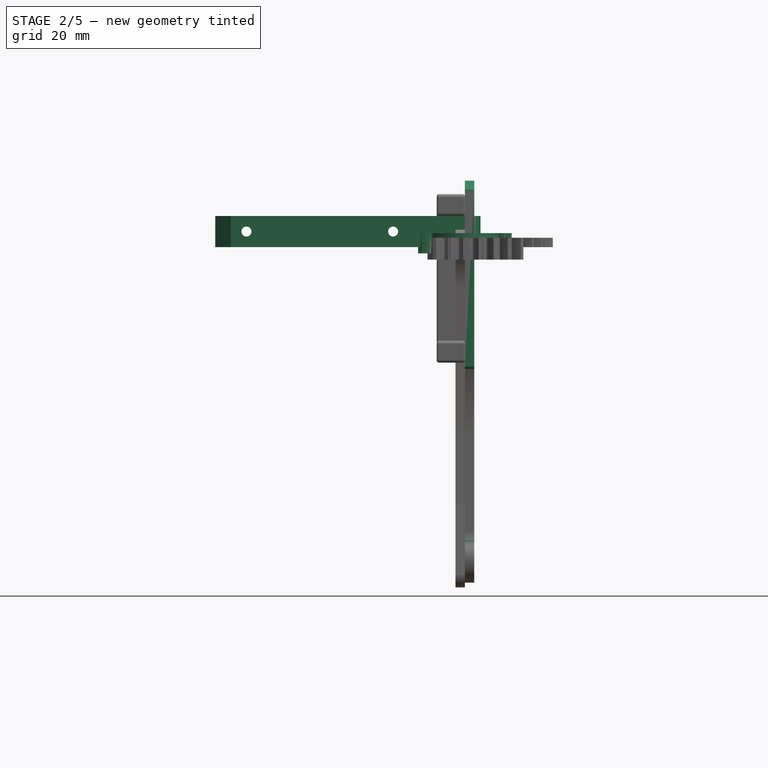
[diagram: stage 2 of 5 — front view after this stage's code; geometry added in this stage tinted green]
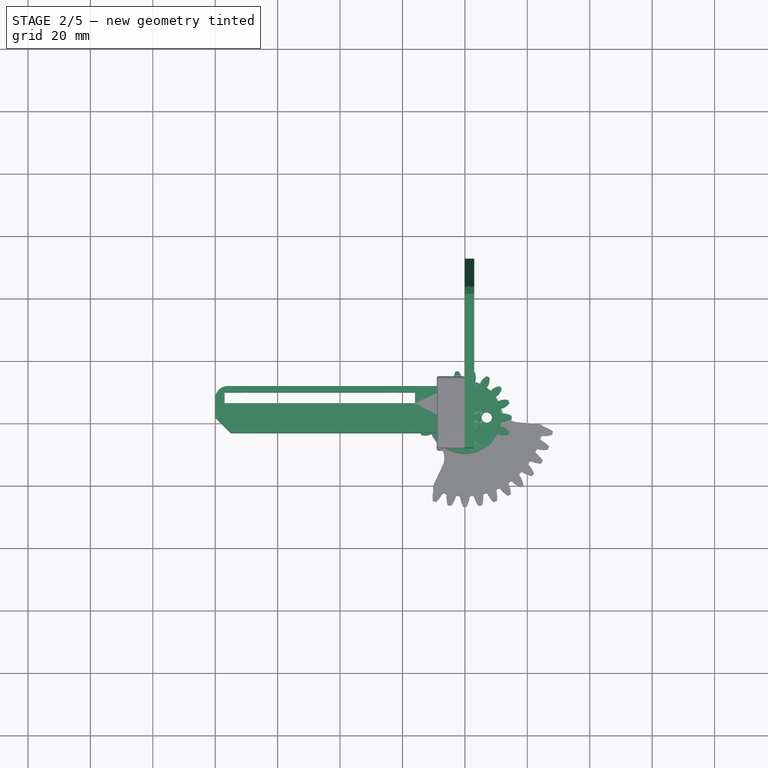
[diagram: stage 2 of 5 — top view after this stage's code; geometry added in this stage tinted green]
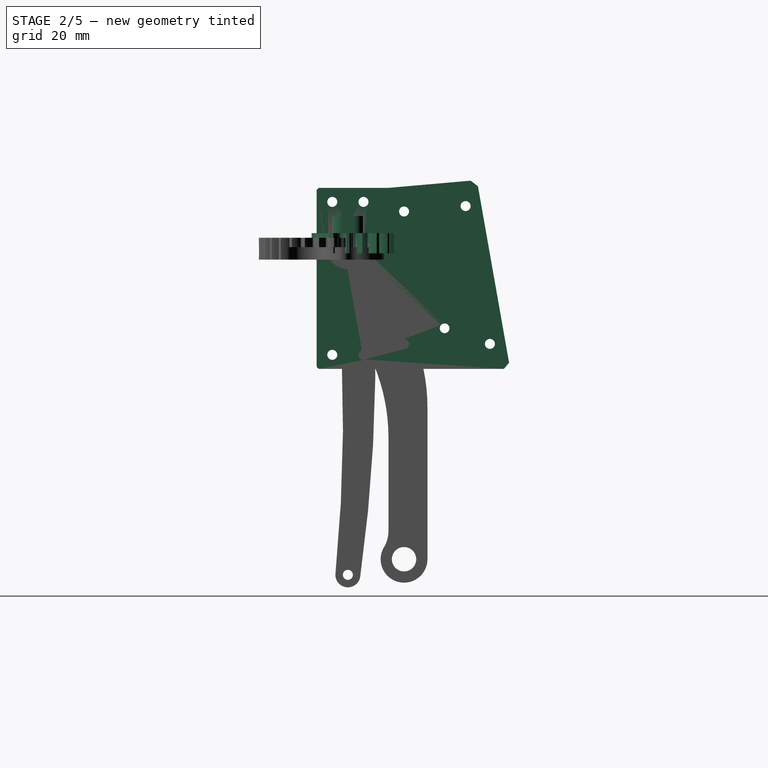
[diagram: stage 2 of 5 — right view after this stage's code; geometry added in this stage tinted green]
FEATURE [Sketcher::SketchObject] Sketch042
  ArcFitTolerance = 0
  ExternalTypes = [0]
  FullyConstrained = true
  MakeInternals = false
  MapMode = 5
  Placement = pos=(0,0,0) rot=(0.57735,0.57735,0.57735;2.0944rad)
  sketch-geometry (20):
    g0: LineSegment StartX=-10 StartY=19 StartZ=0 EndX=-10 EndY=-39 EndZ=0
    g1: LineSegment StartX=-10 StartY=-39 StartZ=0 EndX=52 EndY=-39 EndZ=0
    g2: LineSegment StartX=52 StartY=-39 StartZ=0 EndX=41.3359 EndY=21.4791 EndZ=0
    g3: LineSegment StartX=-10 StartY=19 StartZ=0 EndX=13 EndY=19 EndZ=0
    g4: LineSegment StartX=13 StartY=19 StartZ=0 EndX=41.3359 EndY=21.4791 EndZ=0
    g5: LineSegment [constr] StartX=36.3359 StartY=21.0416 StartZ=0 EndX=46.9229 EndY=-39 EndZ=0
    g6: LineSegment [constr] StartX=18 StartY=-39 StartZ=0 EndX=18 EndY=19.4374 EndZ=0
    g7: Circle CenterX=18 CenterY=11.4374 CenterZ=0 NormalX=0 NormalY=0 NormalZ=1 AngleXU=0 Radius=1.6
    g8: Circle CenterX=37.7251 CenterY=13.1632 CenterZ=0 NormalX=0 NormalY=0 NormalZ=1 AngleXU=0 Radius=1.6
    g9: Circle CenterX=18 CenterY=-31 CenterZ=0 NormalX=0 NormalY=0 NormalZ=1 AngleXU=0 Radius=1.6
    g10: Circle CenterX=45.5123 CenterY=-31 CenterZ=0 NormalX=0 NormalY=0 NormalZ=1 AngleXU=0 Radius=1.6
    g11: LineSegment [constr] StartX=18 StartY=11.4374 StartZ=0 EndX=37.7251 EndY=13.1632 EndZ=0
    g12: Circle CenterX=-5 CenterY=-34.5 CenterZ=0 NormalX=0 NormalY=0 NormalZ=1 AngleXU=0 Radius=1.6
    g13: Circle CenterX=5 CenterY=-34.5 CenterZ=0 NormalX=0 NormalY=0 NormalZ=1 AngleXU=0 Radius=1.6
    g14: Circle CenterX=-5 CenterY=14.5 CenterZ=0 NormalX=0 NormalY=0 NormalZ=1 AngleXU=0 Radius=1.6
    g15: Circle CenterX=5 CenterY=14.5 CenterZ=0 NormalX=0 NormalY=0 NormalZ=1 AngleXU=0 Radius=1.6
    g16: LineSegment [constr] StartX=-5 StartY=14.5 StartZ=0 EndX=-5 EndY=-34.5 EndZ=0
    g17: LineSegment [constr] StartX=-5 StartY=-34.5 StartZ=0 EndX=5 EndY=-34.5 EndZ=0
    g18: LineSegment [constr] StartX=5 StartY=-34.5 StartZ=0 EndX=5 EndY=14.5 EndZ=0
    g19: LineSegment [constr] StartX=5 StartY=14.5 StartZ=0 EndX=-5 EndY=14.5 EndZ=0
  constraints (56):
    c: Coincident(g0,g1)
    c: Coincident(g1,g2)
    c: Vertical(g0)
    c: Horizontal(g1)
    c: Coincident(g0,g3)
    c: Horizontal(g3)
    c: Coincident(g3,g4)
    c: Coincident(g4,g2)
    c: DistanceX(g0,g-1) = 10
    c: DistanceX(g-1,g3) = 13
    c: DistanceY(g-1,g0) = 19
    c: Angle(g0,g2) = 0.174533
    c: Angle(g4,g2) = 1.65806
    c: DistanceX(g1,g1) = 62
    c: PointOnObject(g5,g4)
    c: PointOnObject(g5,g1)
    c: Parallel(g5,g2)
    c: Distance(g5,g2) = 5
    c: PointOnObject(g6,g1)
    c: PointOnObject(g6,g4)
    c: Vertical(g6)
    c: DistanceX(g3,g6) = 5
    c: PointOnObject(g7,g6)
    c: PointOnObject(g8,g5)
    c: PointOnObject(g9,g6)
    c: PointOnObject(g10,g5)
    c: Equal(g7,g8)
    c: Equal(g8,g9)
    c: Equal(g9,g10)
    c: Diameter(g7) = 3.2
    c: Horizontal(g9,g10)
    c: Coincident(g11,g7)
    c: Coincident(g11,g8)
    c: Parallel(g11,g4)
    c: DistanceY(g7,g6) = 8
    c: DistanceY(g6,g9) = 8
    c: Coincident(g16,g17)
    c: Coincident(g17,g18)
    c: Coincident(g18,g19)
    c: Coincident(g19,g16)
    c: Vertical(g16)
    c: Vertical(g18)
    c: Horizontal(g17)
    c: Coincident(g16,g14)
    c: Coincident(g17,g13)
    c: Coincident(g18,g15)
    c: Coincident(g12,g16)
    c: Equal(g12,g13)
    c: Equal(g13,g14)
    c: Equal(g14,g15)
    c: Diameter(g15) = 3.2
    c: DistanceX(g14,g15) = 10
    c: DistanceY(g-1,g15) = 14.5
    c: DistanceY(g16,g16) = 49
    c: Symmetric(g14,g15,g-2)
    c: DistanceY(g0,g-1) = 39
FEATURE [PartDesign::Pad] Pad024
  Direction = (1,1e-16,-1e-16)
  Length = 3
  Length2 = 10
  Placement = pos=(0,0,0) rot=(0.57735,0.57735,0.57735;2.0944rad)
  Profile = -> Sketch042
  ReferenceAxis = -> Sketch042 [N_Axis]
  Refine = true
  SideType = 0
  Suppressed = false
  Type = 0
  Type2 = 0
FEATURE [Sketcher::SketchObject] Sketch043
  ArcFitTolerance = 0
  ExternalTypes = [0]
  FullyConstrained = true
  MakeInternals = false
  MapMode = 5
  Placement = pos=(0,0,0) rot=(0.57735,0.57735,0.57735;2.0944rad)
  sketch-geometry (1):
    g0: Circle CenterX=0 CenterY=0 CenterZ=0 NormalX=0 NormalY=0 NormalZ=1 AngleXU=0 Radius=7
  constraints (2):
    c: Coincident(g0,g-1)
    c: Diameter(g0) = 14
FEATURE [PartDesign::Pocket] Pocket017
  BaseFeature = -> Pad024
  Direction = (-1,-1e-16,1e-16)
  Length = 5
  Length2 = 5
  Placement = pos=(0,0,0) rot=(0.57735,0.57735,0.57735;2.0944rad)
  Profile = -> Sketch043
  ReferenceAxis = -> Sketch043 [N_Axis]
  Refine = true
  Reversed = true
  SideType = 0
  Suppressed = false
  Type = 1
  Type2 = 0
FEATURE [PartDesign::ShapeBinder] ShapeBinder001
  TraceSupport = false
FEATURE [PartDesign::Fillet] Fillet012
  Base = -> Pocket017 [Edge1,Edge2]
  BaseFeature = -> Pocket017
  Placement = pos=(0,0,0) rot=(0.57735,0.57735,0.57735;2.0944rad)
  Radius = 1
  Refine = true
  SupportTransform = false
  Suppressed = false
  UseAllEdges = false
FEATURE [PartDesign::Chamfer] Chamfer006
  Angle = 45
  Base = -> Fillet012 [Edge38,Edge39]
  BaseFeature = -> Fillet012
  ChamferType = 0
  FlipDirection = false
  Placement = pos=(0,0,0) rot=(0.57735,0.57735,0.57735;2.0944rad)
  Refine = true
  Size = 2
  Size2 = 1
  SupportTransform = false
  Suppressed = false
  UseAllEdges = false
FEATURE [PartDesign::Fillet] Fillet017
  Base = -> Fillet016 [Edge33,Edge3]
  BaseFeature = -> Fillet016
  Placement = pos=(0,0,0) rot=(0.57735,0.57735,0.57735;2.0944rad)
  Radius = 10
  Refine = true
  SupportTransform = false
  Suppressed = false
  UseAllEdges = false
FEATURE [PartDesign::Body] Body029
  AllowCompound = true
  Group = -> [Sketch055,Pad029,Sketch056,Pocket025,Fillet018,Sketch057,Pocket026,Chamfer013]
  Origin = -> Origin061
  Placement = pos=(0,10,0) rot=(0,0,1;0rad)
  Tip = -> Chamfer013
FEATURE [Sketcher::SketchObject] Sketch058
  ArcFitTolerance = 1e-06
  AttachmentSupport = -> [XY_Plane055]
  ExternalTypes = [0]
  FullyConstrained = true
  MakeInternals = false
  MapMode = 5
  sketch-geometry (6):
    g0: Circle CenterX=0 CenterY=0 CenterZ=0 NormalX=0 NormalY=0 NormalZ=1 AngleXU=0 Radius=1.6
    g1: LineSegment StartX=-80 StartY=5 StartZ=0 EndX=-80 EndY=-5 EndZ=0
    g2: LineSegment StartX=-80 StartY=-5 StartZ=0 EndX=5 EndY=-5 EndZ=0
    g3: LineSegment StartX=5 StartY=-5 StartZ=0 EndX=5 EndY=5 EndZ=0
    g4: LineSegment StartX=5 StartY=5 StartZ=0 EndX=-80 EndY=5 EndZ=0
    g5: GeomPoint [constr] X=-37.5 Y=0 Z=0
  constraints (15):
    c: Coincident(g0,g-1)
    c: Diameter(g0) = 3.2
    c: Coincident(g1,g2)
    c: Coincident(g2,g3)
    c: Coincident(g3,g4)
    c: Coincident(g4,g1)
    c: Horizontal(g2)
    c: Horizontal(g4)
    c: Vertical(g1)
    c: Vertical(g3)
    c: Symmetric(g2,g1,g5)
    c: PointOnObject(g5,g-1)
    c: DistanceY(g3,g3) = 10
    c: DistanceX(g0,g3) = 5
    c: DistanceX(g4,g4) = 85
FEATURE [PartDesign::Pad] Pad030
  AlongSketchNormal = false
  Direction = (0,0,1)
  Length = 10
  Length2 = 10
  Profile = -> Sketch058
  ReferenceAxis = -> Sketch058 [N_Axis]
  Refine = true
  SideType = 0
  Suppressed = false
  Type = 0
  Type2 = 0
FEATURE [PartDesign::Fillet] Fillet019
  Base = -> Pad030 [Edge8,Edge5]
  BaseFeature = -> Pad030
  Radius = 3
  Refine = true
  SupportTransform = false
  Suppressed = false
  UseAllEdges = false
FEATURE [Sketcher::SketchObject] Sketch059
  ArcFitTolerance = 1e-06
  AttachmentSupport = -> [XY_Plane055]
  ExternalGeometry = -> [Fillet019]
  ExternalTypes = [0]
  FullyConstrained = true
  MakeInternals = false
  MapMode = 5
  sketch-geometry (4):
    g0: LineSegment StartX=-80 StartY=5 StartZ=0 EndX=0 EndY=5 EndZ=0
    g1: LineSegment StartX=-3.6e-15 StartY=5 StartZ=0 EndX=-3.6e-15 EndY=10 EndZ=0
    g2: LineSegment StartX=-3.6e-15 StartY=10 StartZ=0 EndX=-80 EndY=10 EndZ=0
    g3: LineSegment StartX=-80 StartY=10 StartZ=0 EndX=-80 EndY=5 EndZ=0
  constraints (11):
    c: Coincident(g0,g1)
    c: Coincident(g1,g2)
    c: Coincident(g2,g3)
    c: Coincident(g3,g0)
    c: Horizontal(g0)
    c: Horizontal(g2)
    c: Vertical(g1)
    c: Vertical(g3)
    c: Coincident(g0,g-3)
    c: DistanceY(g-3,g2) = 15
    c: DistanceX(g2,g2) = 80
FEATURE [PartDesign::Pad] Pad031
  AlongSketchNormal = false
  BaseFeature = -> Fillet019
  Direction = (0,0,1)
  Length = 10
  Length2 = 10
  Profile = -> Sketch059
  ReferenceAxis = -> Sketch059 [N_Axis]
  Refine = true
  SideType = 0
  Suppressed = false
  Type = 3
  Type2 = 0
  UpToFace = -> Fillet019 [Face5]
FEATURE [Sketcher::SketchObject] Sketch060
  ArcFitTolerance = 1e-06
  AttachmentSupport = -> [XY_Plane055]
  ExternalGeometry = -> [Pad031]
  ExternalTypes = [0]
  FullyConstrained = true
  MakeInternals = false
  MapMode = 5
  sketch-geometry (4):
    g0: LineSegment StartX=-77 StartY=8 StartZ=0 EndX=-16 EndY=8 EndZ=0
    g1: LineSegment StartX=-16 StartY=8 StartZ=0 EndX=-16 EndY=4.5 EndZ=0
    g2: LineSegment StartX=-16 StartY=4.5 StartZ=0 EndX=-77 EndY=4.5 EndZ=0
    g3: LineSegment StartX=-77 StartY=4.5 StartZ=0 EndX=-77 EndY=8 EndZ=0
  constraints (12):
    c: Coincident(g0,g1)
    c: Coincident(g1,g2)
    c: Coincident(g2,g3)
    c: Coincident(g3,g0)
    c: Horizontal(g0)
    c: Horizontal(g2)
    c: Vertical(g1)
    c: Vertical(g3)
    c: DistanceX(g0,g0) = 61
    c: DistanceY(g1,g1) = 3.5
    c: DistanceX(g-3,g0) = 3
    c: DistanceY(g0,g-3) = 2
FEATURE [PartDesign::Pocket] Pocket027
  AlongSketchNormal = false
  BaseFeature = -> Pad031
  Direction = (0,0,-1)
  Length = 5
  Length2 = 10
  Profile = -> Sketch060
  ReferenceAxis = -> Sketch060 [N_Axis]
  Refine = true
  Reversed = true
  SideType = 0
  Suppressed = false
  Type = 1
  Type2 = 0
FEATURE [PartDesign::Fillet] Fillet020
  Base = -> Pocket027 [Edge32,Edge20]
  BaseFeature = -> Pocket027
  Radius = 4
  Refine = true
  SupportTransform = false
  Suppressed = false
  UseAllEdges = false
FEATURE [PartDesign::Chamfer] Chamfer014
  Angle = 45
  Base = -> Fillet020 [Edge18]
  BaseFeature = -> Fillet020
  ChamferType = 0
  FlipDirection = false
  Refine = true
  Size = 5
  Size2 = 1
  SupportTransform = false
  Suppressed = false
  UseAllEdges = false
FEATURE [Sketcher::SketchObject] Sketch061
  ArcFitTolerance = 1e-06
  AttachmentSupport = -> [XZ_Plane055]
  ExternalGeometry = -> [Chamfer014]
  ExternalTypes = [0]
  FullyConstrained = true
  MakeInternals = false
  MapMode = 5
  Placement = pos=(0,0,0) rot=(1,0,0;1.5708rad)
  sketch-geometry (3):
    g0: Circle CenterX=-23 CenterY=5 CenterZ=0 NormalX=0 NormalY=0 NormalZ=1 AngleXU=0 Radius=1.6
    g1: Circle CenterX=-70 CenterY=5 CenterZ=0 NormalX=0 NormalY=0 NormalZ=1 AngleXU=0 Radius=1.6
    g2: LineSegment [constr] StartX=-46.5 StartY=10 StartZ=0 EndX=-46.5 EndY=-1.8e-15 EndZ=0
  constraints (8):
    c: Equal(g0,g1)
    c: Diameter(g0) = 3.2
    c: DistanceX(g1,g0) = 47
    c: Horizontal(g1,g0)
    c: DistanceY(g1,g-3) = 5
    c: PointOnObject(g2,g-4)
    c: Symmetric(g-3,g-3,g2)
    c: Symmetric(g0,g1,g2)
FEATURE [PartDesign::Pocket] Pocket028
  AlongSketchNormal = false
  BaseFeature = -> Chamfer014
  Direction = (0,1,-2e-16)
  Length = 5
  Length2 = 10
  Profile = -> Sketch061
  ReferenceAxis = -> Sketch061 [N_Axis]
  Refine = true
  SideType = 2
  Suppressed = false
  Type = 1
  Type2 = 0
FEATURE [PartDesign::Body] Body030  label="PorteAimant"
  AllowCompound = true
  Group = -> [Sketch058,Pad030,Fillet019,Sketch059,Pad031,Sketch060,Pocket027,Fillet020,Chamfer014,Sketch061,Pocket028,Chamfer015,Sketch062,Pocket029,Chamfer016,Fillet021,Fillet022,Chamfer017,Sketch063,Pocket030,Sketch064,Pocket031,Sketch065,Pocket032,Fillet023,Fillet024,Chamfer018,Chamfer019,Chamfer020]
  Origin = -> Origin063
  Tip = -> Chamfer020
FEATURE [App::Part] Part019  label="MagnetAssembly"
  Group = -> [Body030,Link062]
  Origin = -> Origin062
  Placement = pos=(45,34.5809,25.1837) rot=(0.77529,-0.136705,0.616634;0.557036rad)
FEATURE [App::Part] Part020  label="ProtoMagnet"
  Group = -> [Part019,Body029]
  Origin = -> Origin064
FEATURE [App::Link] Link063  label="Link063(AssemblyAdaptatorSuctionCupDP15)"
  LinkPlacement = pos=(-32.6,34.1422,-14.1421) rot=(-0.055553,-0.421966,0.904908;3.37874rad)
  LinkedObject = -> <external ../mechanical-parts/generic-hardware.FCStd>#Part052
  Placement = pos=(-32.6,34.1422,-14.1421) rot=(-0.055553,-0.421966,0.904908;3.37874rad)
FEATURE [App::Link] Link064  label="Link064(*AssemblyAdaptatorSuctionCupDP15)"
  LinkPlacement = pos=(-32.6,34.1422,14.142) rot=(-0.079043,0.903472,-0.421296;3.21528rad)
  LinkedObject = -> Link063
  Placement = pos=(-32.6,34.1422,14.142) rot=(-0.079043,0.903472,-0.421296;3.21528rad)
FEATURE [App::Link] Link065  label="Link065(MG996)"
  LinkPlacement = pos=(57.4002,29.9999,20) rot=(2e-06,-1e-06,1;0.174533rad)
  LinkedObject = -> <external ../mechanical-parts/generic-hardware.FCStd>#Part015
  Placement = pos=(57.4002,29.9999,20) rot=(2e-06,-1e-06,1;0.174533rad)
FEATURE [App::Link] Link066  label="Link066(AssemblyAdaptatorSuctionCupDP15)"
  LinkPlacement = pos=(67.4001,70,-30) rot=(0,1,0;1.5708rad)
  LinkedObject = -> <external ../mechanical-parts/generic-hardware.FCStd>#Part052
  Placement = pos=(67.4001,70,-30) rot=(0,1,0;1.5708rad)
FEATURE [App::Link] Link067  label="Link067(*AssemblyAdaptatorSuctionCupDP15)"
  LinkPlacement = pos=(67.4,69.9999,30) rot=(0,1,0;1.5708rad)
  LinkedObject = -> Link066
  Placement = pos=(67.4,69.9999,30) rot=(0,1,0;1.5708rad)
FEATURE [App::Part] Part022  label="Part"
  Group = -> [Link063,Link064,Link065,Link066,Link067]
  Origin = -> Origin066
  Placement = pos=(40,0,0) rot=(0,0,1;0rad)
FEATURE [App::Part] Part021  label="ProtoSuctionCup "
  Group = -> [Part022]
  Origin = -> Origin065
FEATURE [App::Part] Part013  label="LifterMobile"
  Group = -> [Link044,Body,Screw019,Nut,Insert,Insert001,Insert002,Screw020,Screw021,Screw022,Screw023,Group,Part018,Part020,Part021]
  Origin = -> Origin052
  Placement = pos=(51.9615,30,32.6) rot=(-0.447214,-0.774597,-0.447214;1.82348rad)
FEATURE [TechDraw::DrawSVGTemplate] Template001
  Height = 210
  Orientation = 1
  Template = <path>
  Width = 297
FEATURE [TechDraw::DrawProjGroupItem] ProjItem004  label="Front004"
  CoarseView = false
  Direction = (1,0,0)
  Focus = 100
  HardHidden = false
  IsoCount = 0
  IsoHidden = false
  IsoVisible = false
  LockPosition = true
  Perspective = false
  Rotation = 0
  RotationVector = (0,1,0)
  ScaleType = 2
  ScrubCount = 0
  SeamHidden = false
  SeamVisible = true
  SmoothHidden = false
  SmoothVisible = true
  Source = -> [Fillet017]
  Type = 0
  X = 0
  XDirection = (0,1,0)
  Y = 0
FEATURE [TechDraw::DrawProjGroup] ProjGroup004
  Anchor = -> ProjItem004
  AutoDistribute = true
  LockPosition = false
  ProjectionType = 0
  Rotation = 0
  ScaleType = 0
  Source = -> [Fillet017]
  Views = -> [ProjItem004]
  X = 148.5
  Y = 105
  spacingX = 15
  spacingY = 15
FEATURE [TechDraw::DrawProjGroupItem] ProjItem005  label="Front005"
  CoarseView = false
  Direction = (1,0,0)
  Focus = 100
  HardHidden = false
  IsoCount = 0
  IsoHidden = false
  IsoVisible = false
  LockPosition = true
  Perspective = false
  Rotation = 0
  RotationVector = (0,1,0)
  ScaleType = 2
  ScrubCount = 0
  SeamHidden = false
  SeamVisible = true
  SmoothHidden = false
  SmoothVisible = true
  Source = -> [Fillet017]
  Type = 0
  X = 0
  XDirection = (0,1,0)
  Y = 0
FEATURE [TechDraw::DrawProjGroup] ProjGroup005
  Anchor = -> ProjItem005
  AutoDistribute = true
  LockPosition = false
  ProjectionType = 0
  Rotation = 0
  ScaleType = 0
  Source = -> [Fillet017]
  Views = -> [ProjItem005]
  X = 188.268
  Y = 106.431
  spacingX = 15
  spacingY = 15
FEATURE [TechDraw::DrawProjGroupItem] ProjItem006  label="Front006"
  CoarseView = false
  Direction = (1,0,0)
  Focus = 100
  HardHidden = false
  IsoCount = 0
  IsoHidden = false
  IsoVisible = false
  LockPosition = true
  Perspective = false
  Rotation = 0
  RotationVector = (0,1,0)
  ScaleType = 2
  ScrubCount = 0
  SeamHidden = false
  SeamVisible = true
  SmoothHidden = false
  SmoothVisible = true
  Source = -> [Fillet]
  Type = 0
  X = 0
  XDirection = (0,1,0)
  Y = 0
FEATURE [TechDraw::DrawProjGroup] ProjGroup006
  Anchor = -> ProjItem006
  AutoDistribute = true
  LockPosition = false
  ProjectionType = 0
  Rotation = 0
  ScaleType = 0
  Source = -> [Fillet]
  Views = -> [ProjItem006]
  X = 112.993
  Y = 104.514
  spacingX = 15
  spacingY = 15
FEATURE [TechDraw::DrawPage] Page001
  KeepUpdated = true
  NextBalloonIndex = 1
  ProjectionType = 0
  Template = -> Template001
  Views = -> [ProjGroup004,ProjGroup005,ProjGroup006]
FEATURE [Part::Part2DObjectPython] InvoluteGear  # Draft 2D object (typed FeaturePython)
  AddendumCoefficient = 1
  DedendumCoefficient = 1.25
  ExternalGear = true
  HighPrecision = true
  Modules = 1.5
  NumberOfTeeth = 18
  PressureAngle = 20
  ProfileShiftCoefficient = 0
  RootFilletCoefficient = 0.38
FEATURE [PartDesign::Pad] Pad032
  AlongSketchNormal = false
  Direction = (0,0,1)
  Length = 4.5
  Length2 = 2
  Profile = -> InvoluteGear
  ReferenceAxis = -> InvoluteGear [N_Axis]
  Refine = true
  SideType = 1
  Suppressed = false
  Type = 0
  Type2 = 0
FEATURE [Sketcher::SketchObject] Sketch066
  ArcFitTolerance = 1e-06
  AttachmentSupport = -> [XY_Plane057]
  ExternalTypes = [0]
  FullyConstrained = true
  MakeInternals = true
  MapMode = 5
  sketch-geometry (1):
    g0: Circle CenterX=0 CenterY=0 CenterZ=0 NormalX=0 NormalY=0 NormalZ=1 AngleXU=0 Radius=10
  constraints (2):
    c: Coincident(g0,g-1)
    c: Diameter(g0) = 20
FEATURE [PartDesign::Pocket] Pocket033
  AlongSketchNormal = false
  BaseFeature = -> Pad032
  Direction = (0,0,-1)
  Length = 5
  Length2 = 10
  Profile = -> Sketch066
  ReferenceAxis = -> Sketch066 [N_Axis]
  Refine = true
  SideType = 0
  Suppressed = false
  Type = 0
  Type2 = 0
FEATURE [Sketcher::SketchObject] Sketch067
  ArcFitTolerance = 1e-06
  AttachmentSupport = -> [XY_Plane057]
  ExternalTypes = [0]
  FullyConstrained = true
  MakeInternals = true
  MapMode = 5
  sketch-geometry (6):
    g0: Circle [constr] CenterX=0 CenterY=0 CenterZ=0 NormalX=0 NormalY=0 NormalZ=1 AngleXU=0 Radius=7
    g1: Circle CenterX=0 CenterY=7 CenterZ=0 NormalX=0 NormalY=0 NormalZ=1 AngleXU=0 Radius=1.65
    g2: Circle CenterX=7 CenterY=0 CenterZ=0 NormalX=0 NormalY=0 NormalZ=1 AngleXU=0 Radius=1.65
    g3: Circle CenterX=-7 CenterY=0 CenterZ=0 NormalX=0 NormalY=0 NormalZ=1 AngleXU=0 Radius=1.65
    g4: Circle CenterX=0 CenterY=-7 CenterZ=0 NormalX=0 NormalY=0 NormalZ=1 AngleXU=0 Radius=1.65
    g5: Circle CenterX=0 CenterY=0 CenterZ=0 NormalX=0 NormalY=0 NormalZ=1 AngleXU=0 Radius=1.65
  constraints (16):
    c: Coincident(g0,g-1)
    c: Diameter(g0) = 14
    c: PointOnObject(g1,g-2)
    c: PointOnObject(g2,g-1)
    c: PointOnObject(g3,g-1)
    c: PointOnObject(g4,g-2)
    c: PointOnObject(g1,g0)
    c: PointOnObject(g4,g0)
    c: PointOnObject(g2,g0)
    c: PointOnObject(g3,g0)
    c: Equal(g1,g3)
    c: Equal(g1,g4)
    c: Equal(g1,g2)
    c: Diameter(g1) = 3.3
    c: Coincident(g5,g0)
    c: Equal(g5,g1)
FEATURE [PartDesign::Pocket] Pocket034
  AlongSketchNormal = false
  BaseFeature = -> Pocket033
  Direction = (0,0,-1)
  Length = 20
  Length2 = 10
  Profile = -> Sketch067
  ReferenceAxis = -> Sketch067 [N_Axis]
  Refine = true
  SideType = 2
  Suppressed = false
  Type = 0
  Type2 = 0
FEATURE [Sketcher::SketchObject] Sketch068
  ArcFitTolerance = 1e-06
  AttachmentSupport = -> [XY_Plane057]
  ExternalGeometry = -> [Pocket034]
  ExternalTypes = [0]
  FullyConstrained = true
  MakeInternals = true
  MapMode = 5
  sketch-geometry (4):
    g0: ArcOfCircle CenterX=0 CenterY=0 CenterZ=0 NormalX=0 NormalY=0 NormalZ=1 AngleXU=0 Radius=11.625 StartAngle=3.66519 EndAngle=5.75959
    g1: ArcOfCircle CenterX=0 CenterY=0 CenterZ=0 NormalX=0 NormalY=0 NormalZ=1 AngleXU=0 Radius=16 StartAngle=3.66519 EndAngle=5.75959
    g2: LineSegment StartX=-13.8564 StartY=-8 StartZ=0 EndX=-10.0675 EndY=-5.8125 EndZ=0
    g3: LineSegment StartX=13.8564 StartY=-8 StartZ=0 EndX=10.0675 EndY=-5.8125 EndZ=0
  constraints (12):
    c: Coincident(g0,g-1)
    c: Coincident(g1,g0)
    c: Coincident(g2,g1)
    c: Coincident(g2,g0)
    c: Coincident(g3,g1)
    c: Coincident(g3,g0)
    c: PointOnObject(g0,g3)
    c: PointOnObject(g0,g2)
    c: Radius(g1) = 16
    c: Angle(g3,g-1) = 0.523599
    c: Angle(g2,g-1) = 2.61799
    c: PointOnObject(g0,g-3)
FEATURE [PartDesign::Pocket] Pocket035
  AlongSketchNormal = false
  BaseFeature = -> Pocket034
  Direction = (0,0,-1)
  Length = 20
  Length2 = 10
  Profile = -> Sketch068
  ReferenceAxis = -> Sketch068 [N_Axis]
  Refine = true
  SideType = 2
  Suppressed = false
  Type = 0
  Type2 = 0
FEATURE [Sketcher::SketchObject] Sketch073
  ArcFitTolerance = 1e-06
  AttachmentSupport = -> [YZ_Plane041]
  ExternalTypes = [0]
  FullyConstrained = true
  MakeInternals = false
  MapMode = 5
  Placement = pos=(0,0,0) rot=(0.57735,0.57735,0.57735;2.0944rad)
  sketch-geometry (1):
    g0: Circle CenterX=31 CenterY=-26 CenterZ=0 NormalX=0 NormalY=0 NormalZ=1 AngleXU=0 Radius=1.55
  constraints (3):
    c: DistanceX(g0,g-1) = -31
    c: DistanceY(g0,g-1) = 26
    c: Diameter(g0) = 3.1
FEATURE [PartDesign::Pocket] Pocket039
  AlongSketchNormal = false
  BaseFeature = -> Chamfer006
  Direction = (-1,0,0)
  Length = 5
  Length2 = 10
  Placement = pos=(0,0,0) rot=(0.57735,0.57735,0.57735;2.0944rad)
  Profile = -> Sketch073
  ReferenceAxis = -> Sketch073 [N_Axis]
  Refine = true
  Reversed = true
  SideType = 0
  Suppressed = false
  Type = 0
  Type2 = 0
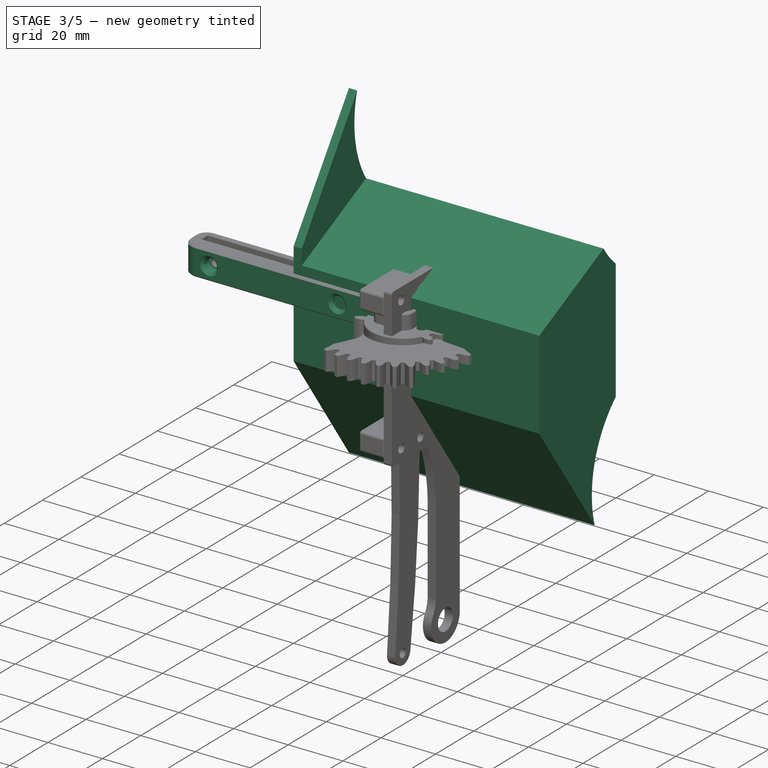
[diagram: stage 3 of 5 — iso view after this stage's code; geometry added in this stage tinted green]
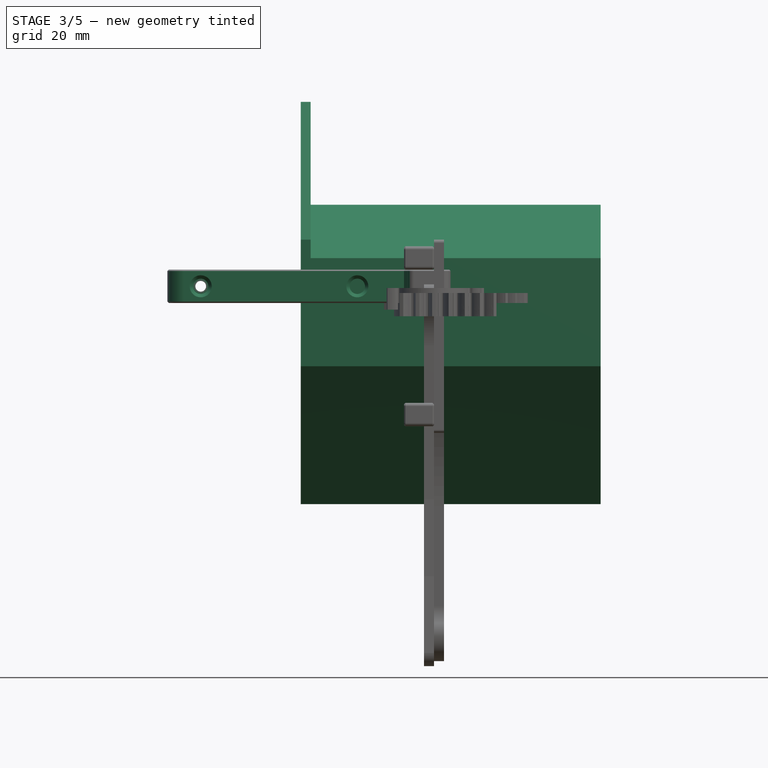
[diagram: stage 3 of 5 — front view after this stage's code; geometry added in this stage tinted green]
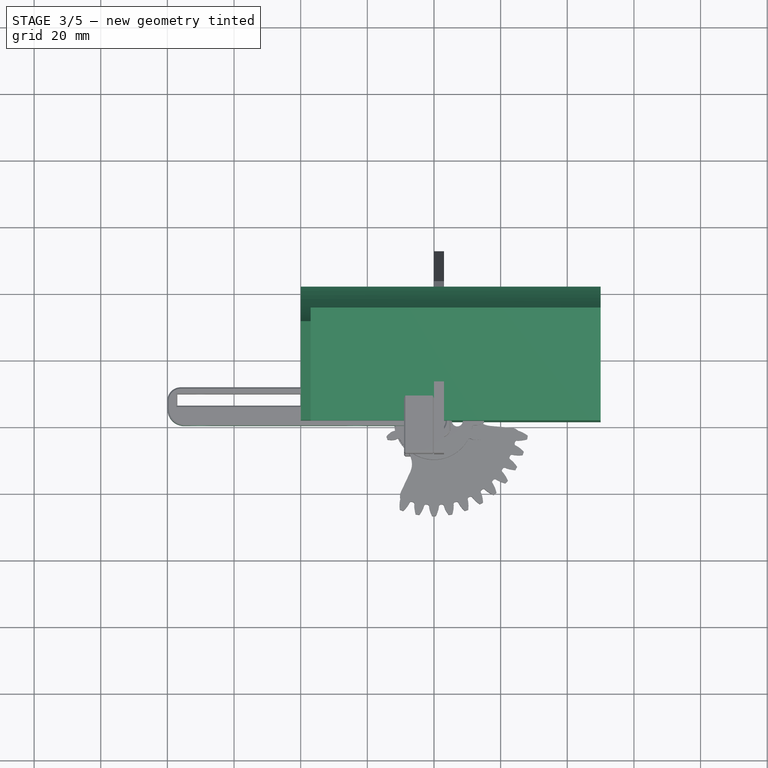
[diagram: stage 3 of 5 — top view after this stage's code; geometry added in this stage tinted green]
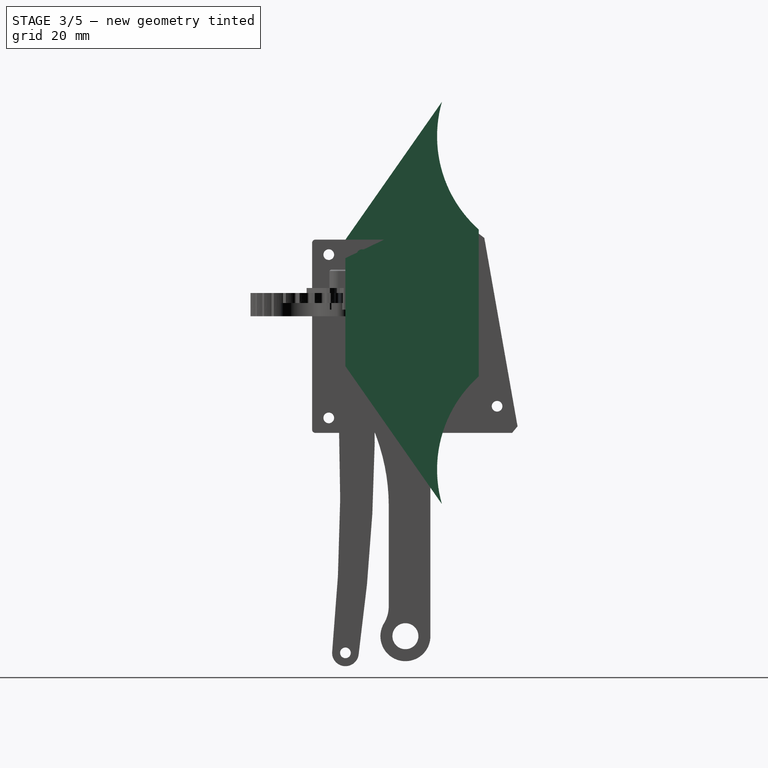
[diagram: stage 3 of 5 — right view after this stage's code; geometry added in this stage tinted green]
FEATURE [PartDesign::Body] Body026  label="ClipRail"
  AllowCompound = true
  Group = -> [Sketch045,Pad026,Sketch046,Pocket018,Sketch047,Pocket019,Pocket024,Chamfer008,Fillet014,Fillet015,Chamfer009,Sketch048,Pocket020,Chamfer010]
  Origin = -> Origin047
  Placement = pos=(0,0,56) rot=(0,0,1;0rad)
  Tip = -> Chamfer010
FEATURE [TechDraw::DrawSVGTemplate] Template
  Height = 210
  Orientation = 1
  Template = <path>
  Width = 297
FEATURE [TechDraw::DrawProjGroupItem] ProjItem  label="Front"
  CoarseView = false
  Direction = (1,0,0)
  Focus = 100
  HardHidden = false
  IsoCount = 0
  IsoHidden = false
  IsoVisible = false
  LockPosition = true
  Perspective = false
  Rotation = 0
  RotationVector = (0,1,0)
  ScaleType = 2
  ScrubCount = 0
  SeamHidden = false
  SeamVisible = false
  SmoothHidden = false
  SmoothVisible = false
  Source = -> [Chamfer006]
  Type = 0
  X = 0
  XDirection = (0,1,0)
  Y = 0
FEATURE [TechDraw::DrawProjGroup] ProjGroup
  Anchor = -> ProjItem
  AutoDistribute = true
  LockPosition = false
  ProjectionType = 0
  Rotation = 0
  ScaleType = 0
  Source = -> [Chamfer006]
  Views = -> [ProjItem]
  X = 33.1296
  Y = 178.241
  spacingX = 15
  spacingY = 15
FEATURE [TechDraw::DrawProjGroupItem] ProjItem001  label="Front001"
  CoarseView = false
  Direction = (1,0,0)
  Focus = 100
  HardHidden = false
  IsoCount = 0
  IsoHidden = false
  IsoVisible = false
  LockPosition = true
  Perspective = false
  Rotation = 0
  RotationVector = (0,1,0)
  ScaleType = 2
  ScrubCount = 0
  SeamHidden = false
  SeamVisible = false
  SmoothHidden = false
  SmoothVisible = false
  Source = -> [Fillet017]
  Type = 0
  X = 0
  XDirection = (0,1,0)
  Y = 0
FEATURE [TechDraw::DrawProjGroup] ProjGroup001
  Anchor = -> ProjItem001
  AutoDistribute = true
  LockPosition = false
  ProjectionType = 0
  Rotation = 0
  ScaleType = 0
  Source = -> [Fillet017]
  Views = -> [ProjItem001]
  X = 100.537
  Y = 151.343
  spacingX = 15
  spacingY = 15
FEATURE [TechDraw::DrawProjGroupItem] ProjItem002  label="Front002"
  CoarseView = false
  Direction = (1,0,0)
  Focus = 100
  HardHidden = false
  IsoCount = 0
  IsoHidden = false
  IsoVisible = false
  LockPosition = true
  Perspective = false
  Rotation = 0
  RotationVector = (0,1,0)
  ScaleType = 2
  ScrubCount = 0
  SeamHidden = false
  SeamVisible = false
  SmoothHidden = false
  SmoothVisible = false
  Source = -> [Fillet017]
  Type = 0
  X = 0
  XDirection = (0,1,0)
  Y = 0
FEATURE [TechDraw::DrawProjGroup] ProjGroup002
  Anchor = -> ProjItem002
  AutoDistribute = true
  LockPosition = false
  ProjectionType = 0
  Rotation = 0
  ScaleType = 0
  Source = -> [Fillet017]
  Views = -> [ProjItem002]
  X = 76.2315
  Y = 151.343
  spacingX = 15
  spacingY = 15
FEATURE [TechDraw::DrawProjGroupItem] ProjItem003  label="Front003"
  CoarseView = false
  Direction = (1,0,0)
  Focus = 100
  HardHidden = false
  IsoCount = 0
  IsoHidden = false
  IsoVisible = false
  LockPosition = true
  Perspective = false
  Rotation = 0
  RotationVector = (0,1,0)
  ScaleType = 2
  ScrubCount = 0
  SeamHidden = false
  SeamVisible = false
  SmoothHidden = false
  SmoothVisible = false
  Source = -> [Fillet]
  Type = 0
  X = 0
  XDirection = (0,1,0)
  Y = 0
FEATURE [TechDraw::DrawProjGroup] ProjGroup003
  Anchor = -> ProjItem003
  AutoDistribute = true
  LockPosition = false
  ProjectionType = 0
  Rotation = 0
  ScaleType = 0
  Source = -> [Fillet]
  Views = -> [ProjItem003]
  X = 127.435
  Y = 144.537
  spacingX = 15
  spacingY = 15
FEATURE [TechDraw::DrawPage] Page  label="Laser3mm-EnsembleLifter"
  KeepUpdated = true
  NextBalloonIndex = 1
  ProjectionType = 0
  Template = -> Template
  Views = -> [ProjGroup,ProjGroup001,ProjGroup002,ProjGroup003]
FEATURE [App::Link] Link046  label="Link046(ClipRail002)"
  LinkPlacement = pos=(1.0677e-05,-3.33786e-06,56) rot=(0.866025,0.5,0;3.14159rad)
  LinkedObject = -> Link034
  Placement = pos=(1.0677e-05,-3.33786e-06,56) rot=(0.866025,0.5,0;3.14159rad)
FEATURE [App::Link] Link047  label="Link047(MGN9-225mm-Custom)"
  LinkPlacement = pos=(55.9666,32.8897,2.46922) rot=(0.447214,0.774597,-0.447214;1.82348rad)
  LinkedObject = -> <external ../mechanical-parts/generic-hardware.FCStd>#Body115
  Placement = pos=(55.9666,32.8897,2.46922) rot=(0.447214,0.774597,-0.447214;1.82348rad)
FEATURE [App::Part] Part011  label="RailAssembly"
  Group = -> [Body026,Link033,Link034,Link046,Link043,Link047]
  Origin = -> Origin048
FEATURE [PartDesign::Plane] DatumPlane001  label="GamePlane"
  AttachmentOffset = pos=(0,0,-13.8) rot=(0,0,1;0rad)
  AttachmentSupport = -> [XY_Plane043]
  Length = 257.798
  MapMode = 2
  Placement = pos=(0,0,-13.8) rot=(0,0,1;0rad)
  ResizeMode = 0
  Width = 224.929
FEATURE [App::Part] Part015  label="GameElements"
  Origin = -> Origin057
  Placement = pos=(134.234,77.5,0) rot=(0,0,1;0.523599rad)
FEATURE [App::Link] Link060  label="Link060(*Column)"
  LinkPlacement = pos=(0,-50,-13.8) rot=(0,0,1;0rad)
  Placement = pos=(0,-50,-13.8) rot=(0,0,1;0rad)
FEATURE [App::Link] Link061  label="Link061(*Column)"
  LinkPlacement = pos=(0,50,-13.8) rot=(0,0,1;0rad)
  Placement = pos=(0,50,-13.8) rot=(0,0,1;0rad)
FEATURE [App::Part] Part018  label="GripElements"
  Group = -> [Link060,Link061]
  Origin = -> Origin060
  Placement = pos=(-32.6,75,2.17e-14) rot=(0.57735,0.57735,0.57735;2.0944rad)
FEATURE [Sketcher::SketchObject] Sketch055
  ArcFitTolerance = 1e-06
  AttachmentSupport = -> [YZ_Plane053]
  ExternalTypes = [0]
  FullyConstrained = true
  MakeInternals = false
  MapMode = 5
  Placement = pos=(0,0,0) rot=(0.57735,0.57735,0.57735;2.0944rad)
  sketch-geometry (8):
    g0: LineSegment StartX=0 StartY=19 StartZ=0 EndX=0 EndY=-19 EndZ=0
    g1: LineSegment [constr] StartX=0 StartY=19 StartZ=0 EndX=65 EndY=50 EndZ=0
    g2: LineSegment [constr] StartX=0 StartY=-19 StartZ=0 EndX=65 EndY=-50 EndZ=0
    g3: LineSegment StartX=0 StartY=19 StartZ=0 EndX=28.9587 EndY=60.3573 EndZ=0
    g4: ArcOfCircle CenterX=65 CenterY=50 CenterZ=0 NormalX=0 NormalY=0 NormalZ=1 AngleXU=0 Radius=37.5 StartAngle=2.86176 EndAngle=3.98266
    g5: LineSegment StartX=0 StartY=-19 StartZ=0 EndX=28.9587 EndY=-60.3573 EndZ=0
    g6: ArcOfCircle CenterX=65 CenterY=-50 CenterZ=0 NormalX=0 NormalY=0 NormalZ=1 AngleXU=0 Radius=37.5 StartAngle=2.30052 EndAngle=3.42142
    g7: LineSegment StartX=40 StartY=22.0492 StartZ=0 EndX=40 EndY=-22.0492 EndZ=0
  constraints (21):
    c: PointOnObject(g0,g-2)
    c: Coincident(g1,g0)
    c: Coincident(g2,g0)
    c: Symmetric(g1,g2,g-1)
    c: DistanceY(g2,g1) = 100
    c: DistanceY(g0,g0) = 38
    c: Symmetric(g0,g0,g-1)
    c: DistanceX(g-1,g1) = 65
    c: Coincident(g3,g0)
    c: Coincident(g4,g1)
    c: Coincident(g4,g3)
    c: Coincident(g5,g0)
    c: Coincident(g6,g2)
    c: Coincident(g6,g5)
    c: Symmetric(g5,g3,g-1)
    c: Coincident(g7,g4)
    c: Coincident(g7,g6)
    c: Vertical(g7)
    c: Radius(g4) = 37.5
    c: DistanceX(g-1,g4) = 40
    c: Angle(g-1,g3) = 0.959931
FEATURE [PartDesign::Pad] Pad029
  AlongSketchNormal = false
  Direction = (1,0,0)
  Length = 50
  Length2 = 40
  Placement = pos=(0,0,0) rot=(1,1,1;2.0944rad)
  Profile = -> Sketch055
  ReferenceAxis = -> Sketch055 [N_Axis]
  Refine = true
  SideType = 1
  Suppressed = false
  Type = 0
  Type2 = 0
FEATURE [Sketcher::SketchObject] Sketch056
  ArcFitTolerance = 1e-06
  AttachmentSupport = -> [YZ_Plane053]
  ExternalGeometry = -> [Pad029]
  ExternalTypes = [0]
  FullyConstrained = true
  MakeInternals = false
  MapMode = 5
  Placement = pos=(0,0,0) rot=(0.57735,0.57735,0.57735;2.0944rad)
  sketch-geometry (9):
    g0: LineSegment [constr] StartX=0 StartY=19 StartZ=0 EndX=65 EndY=50 EndZ=0
    g1: LineSegment [constr] StartX=65 StartY=-50 StartZ=0 EndX=0 EndY=-19 EndZ=0
    g2: ArcOfCircle CenterX=65 CenterY=50 CenterZ=0 NormalX=0 NormalY=0 NormalZ=1 AngleXU=0 Radius=37.5 StartAngle=2.86176 EndAngle=3.58661
    g3: LineSegment [constr] StartX=31.1524 StartY=33.8573 StartZ=0 EndX=0 EndY=19 EndZ=0
    g4: LineSegment StartX=0 StartY=19 StartZ=0 EndX=28.9587 EndY=60.3573 EndZ=0
    g5: ArcOfCircle CenterX=65 CenterY=50 CenterZ=0 NormalX=0 NormalY=0 NormalZ=1 AngleXU=0 Radius=37.5 StartAngle=3.58661 EndAngle=3.72034
    g6: LineSegment StartX=33.6069 StartY=29.4884 StartZ=0 EndX=0 EndY=13.4605 EndZ=0
    g7: LineSegment StartX=0 StartY=13.4605 StartZ=0 EndX=0 EndY=19 EndZ=0
    g8: LineSegment [constr] StartX=33.6069 StartY=29.4884 StartZ=0 EndX=29.3022 EndY=38.5144 EndZ=0
  constraints (22):
    c: Coincident(g0,g-5)
    c: Coincident(g0,g-3)
    c: Coincident(g1,g-4)
    c: Coincident(g1,g-6)
    c: Coincident(g2,g-3)
    c: Coincident(g3,g2)
    c: Coincident(g3,g-5)
    c: Coincident(g4,g3)
    c: Coincident(g4,g2)
    c: PointOnObject(g2,g0)
    c: Coincident(g2,g-5)
    c: Coincident(g5,g2)
    c: Coincident(g5,g2)
    c: Coincident(g6,g5)
    c: PointOnObject(g6,g-2)
    c: Coincident(g7,g6)
    c: Coincident(g7,g4)
    c: Parallel(g6,g0)
    c: Coincident(g8,g5)
    c: PointOnObject(g8,g2)
    c: Distance(g8) = 10
    c: Perpendicular(g0,g8)
FEATURE [PartDesign::Pocket] Pocket025
  AlongSketchNormal = false
  BaseFeature = -> Pad029
  Direction = (-1,0,0)
  Length = 37
  Length2 = 100
  Placement = pos=(0,0,0) rot=(1,1,1;2.0944rad)
  Profile = -> Sketch056
  ReferenceAxis = -> Sketch056 [N_Axis]
  Refine = true
  SideType = 1
  Suppressed = false
  Type = 0
  Type2 = 0
FEATURE [PartDesign::Chamfer] Chamfer015
  Angle = 45
  Base = -> Pocket028 [Edge31,Edge30]
  BaseFeature = -> Pocket028
  ChamferType = 0
  FlipDirection = false
  Refine = true
  Size = 1.9
  Size2 = 1
  SupportTransform = false
  Suppressed = false
  UseAllEdges = false
FEATURE [Sketcher::SketchObject] Sketch062
  ArcFitTolerance = 1e-06
  AttachmentSupport = -> [Chamfer015]
  ExternalGeometry = -> [Chamfer015]
  ExternalTypes = [0]
  FullyConstrained = true
  MakeInternals = false
  MapMode = 5
  Placement = pos=(0,-5,0) rot=(1,0,0;1.5708rad)
  sketch-geometry (2):
    g0: Circle CenterX=-70 CenterY=5 CenterZ=0 NormalX=0 NormalY=0 NormalZ=1 AngleXU=0 Radius=2.3
    g1: Circle CenterX=-23 CenterY=5 CenterZ=0 NormalX=0 NormalY=0 NormalZ=1 AngleXU=0 Radius=2.3
  constraints (4):
    c: Coincident(g0,g-3)
    c: Coincident(g1,g-4)
    c: Diameter(g0) = 4.6
    c: Equal(g1,g0)
FEATURE [PartDesign::Pocket] Pocket029
  AlongSketchNormal = false
  BaseFeature = -> Chamfer015
  Direction = (0,1,-2e-16)
  Length = 7
  Length2 = 10
  Profile = -> Sketch062
  ReferenceAxis = -> Sketch062 [N_Axis]
  Refine = true
  SideType = 0
  Suppressed = false
  Type = 0
  Type2 = 0
FEATURE [PartDesign::Chamfer] Chamfer016
  Angle = 45
  Base = -> Pocket029 [Edge48,Edge49]
  BaseFeature = -> Pocket029
  ChamferType = 0
  FlipDirection = false
  Refine = true
  Size = 1
  Size2 = 1
  SupportTransform = false
  Suppressed = false
  UseAllEdges = false
FEATURE [PartDesign::Fillet] Fillet021
  Base = -> Chamfer016 [Edge24]
  BaseFeature = -> Chamfer016
  Radius = 10
  Refine = true
  SupportTransform = false
  Suppressed = false
  UseAllEdges = false
FEATURE [PartDesign::Fillet] Fillet022
  Base = -> Fillet021 [Edge25]
  BaseFeature = -> Fillet021
  Radius = 3
  Refine = true
  SupportTransform = false
  Suppressed = false
  UseAllEdges = false
FEATURE [PartDesign::Chamfer] Chamfer017
  Angle = 45
  Base = -> Fillet022 [Edge61,Edge60]
  BaseFeature = -> Fillet022
  ChamferType = 0
  FlipDirection = false
  Refine = true
  Size = 0.5
  Size2 = 1
  SupportTransform = false
  Suppressed = false
  UseAllEdges = false
FEATURE [Sketcher::SketchObject] Sketch063
  ArcFitTolerance = 1e-06
  AttachmentSupport = -> [Chamfer017]
  ExternalTypes = [0]
  FullyConstrained = true
  MakeInternals = false
  MapMode = 5
  Placement = pos=(0,0,10) rot=(0,0,1;0rad)
  sketch-geometry (1):
    g0: Circle CenterX=0 CenterY=0 CenterZ=0 NormalX=0 NormalY=0 NormalZ=1 AngleXU=0 Radius=3.5
  constraints (2):
    c: Coincident(g0,g-1)
    c: Diameter(g0) = 7
FEATURE [PartDesign::Pocket] Pocket030
  AlongSketchNormal = false
  BaseFeature = -> Chamfer017
  Direction = (0,0,-1)
  Length = 3
  Length2 = 10
  Profile = -> Sketch063
  ReferenceAxis = -> Sketch063 [N_Axis]
  Refine = true
  SideType = 0
  Suppressed = false
  Type = 0
  Type2 = 0
FEATURE [Sketcher::SketchObject] Sketch064
  ArcFitTolerance = 1e-06
  AttachmentSupport = -> [Pocket030]
  ExternalTypes = [0]
  FullyConstrained = true
  MakeInternals = false
  MapMode = 5
  Placement = pos=(0,0,0) rot=(1,0,0;3.14159rad)
  sketch-geometry (1):
    g0: Circle CenterX=0 CenterY=0 CenterZ=0 NormalX=0 NormalY=0 NormalZ=1 AngleXU=0 Radius=3.5
  constraints (2):
    c: Coincident(g0,g-1)
    c: Diameter(g0) = 7
FEATURE [PartDesign::Pocket] Pocket031
  AlongSketchNormal = false
  BaseFeature = -> Pocket030
  Direction = (0,0,1)
  Length = 3
  Length2 = 10
  Profile = -> Sketch064
  ReferenceAxis = -> Sketch064 [N_Axis]
  Refine = true
  SideType = 0
  Suppressed = false
  Type = 0
  Type2 = 0
FEATURE [App::Link] Link062  label="Link062(FlatMagnet - 60x13,5x5 mm - 30kg)"
  LinkPlacement = pos=(-46.4561,4.86371,4.76096) rot=(0.707107,0,0.707107;3.14159rad)
  LinkedObject = -> <external ../mechanical-parts/generic-hardware.FCStd>#Body116
  Placement = pos=(-46.4561,4.86371,4.76096) rot=(0.707107,0,0.707107;3.14159rad)
FEATURE [Sketcher::SketchObject] Sketch065
  ArcFitTolerance = 1e-06
  AttachmentSupport = -> [XY_Plane055]
  ExternalGeometry = -> [Pocket031]
  ExternalTypes = [0]
  FullyConstrained = true
  MakeInternals = false
  MapMode = 5
  sketch-geometry (4):
    g0: LineSegment StartX=-80 StartY=-1.5 StartZ=0 EndX=-8 EndY=-1.5 EndZ=0
    g1: LineSegment StartX=-8 StartY=-1.5 StartZ=0 EndX=-8 EndY=-5 EndZ=0
    g2: LineSegment StartX=-8 StartY=-5 StartZ=0 EndX=-80 EndY=-5 EndZ=0
    g3: LineSegment StartX=-80 StartY=-5 StartZ=0 EndX=-80 EndY=-1.5 EndZ=0
  constraints (12):
    c: Coincident(g0,g1)
    c: Coincident(g1,g2)
    c: Coincident(g2,g3)
    c: Coincident(g3,g0)
    c: Horizontal(g0)
    c: Horizontal(g2)
    c: Vertical(g1)
    c: Vertical(g3)
    c: DistanceY(g0,g-3) = 6
    c: PointOnObject(g1,g-4)
    c: DistanceX(g1,g-1) = 8
    c: PointOnObject(g-5,g3)
FEATURE [PartDesign::Pocket] Pocket032
  AlongSketchNormal = false
  BaseFeature = -> Pocket031
  Direction = (0,0,-1)
  Length = 5
  Length2 = 10
  Profile = -> Sketch065
  ReferenceAxis = -> Sketch065 [N_Axis]
  Refine = true
  Reversed = true
  SideType = 0
  Suppressed = false
  Type = 1
  Type2 = 0
FEATURE [PartDesign::Fillet] Fillet023
  Base = -> Pocket032 [Edge53]
  BaseFeature = -> Pocket032
  Radius = 2
  Refine = true
  SupportTransform = false
  Suppressed = false
  UseAllEdges = false
FEATURE [PartDesign::Fillet] Fillet024
  Base = -> Fillet023 [Edge26]
  BaseFeature = -> Fillet023
  Radius = 5
  Refine = true
  SupportTransform = false
  Suppressed = false
  UseAllEdges = false
FEATURE [PartDesign::Chamfer] Chamfer018
  Angle = 45
  Base = -> Fillet024 [Edge22]
  BaseFeature = -> Fillet024
  ChamferType = 0
  FlipDirection = false
  Refine = true
  Size = 1
  Size2 = 1
  SupportTransform = false
  Suppressed = false
  UseAllEdges = false
FEATURE [PartDesign::Chamfer] Chamfer019
  Angle = 45
  Base = -> Chamfer018 [Edge25,Edge26]
  BaseFeature = -> Chamfer018
  ChamferType = 0
  FlipDirection = false
  Refine = true
  Size = 1
  Size2 = 1
  SupportTransform = false
  Suppressed = false
  UseAllEdges = false
FEATURE [PartDesign::Chamfer] Chamfer020
  Angle = 45
  Base = -> Chamfer019 [Face6,Face3]
  BaseFeature = -> Chamfer019
  ChamferType = 0
  FlipDirection = false
  Refine = true
  Size = 0.4
  Size2 = 1
  SupportTransform = false
  Suppressed = false
  UseAllEdges = false
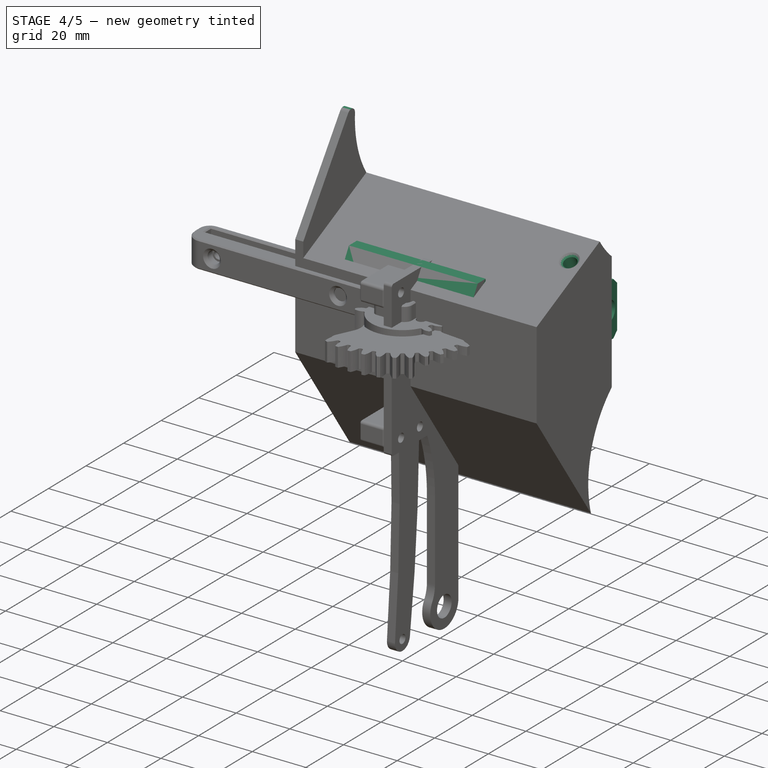
[diagram: stage 4 of 5 — iso view after this stage's code; geometry added in this stage tinted green]
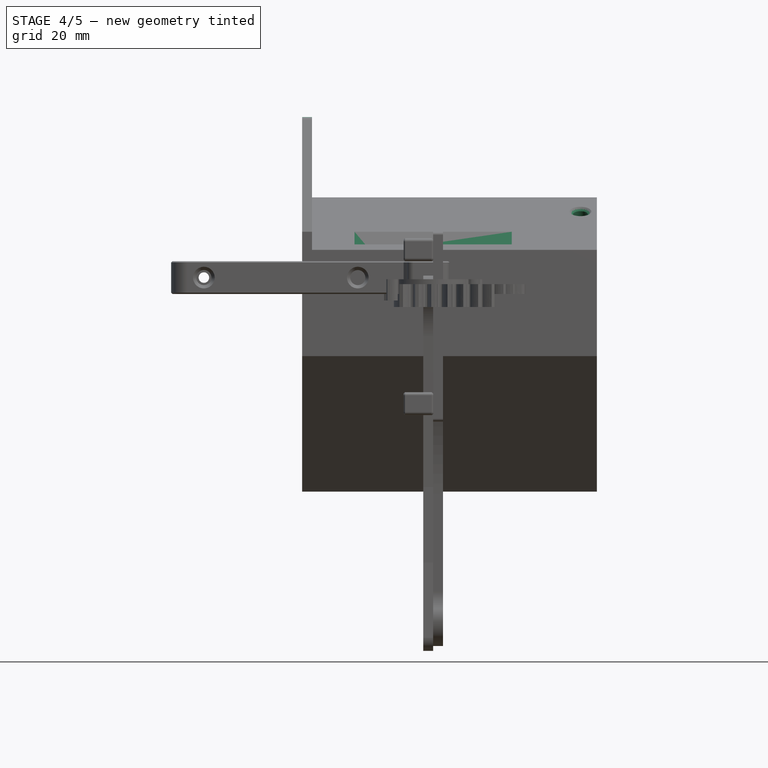
[diagram: stage 4 of 5 — front view after this stage's code; geometry added in this stage tinted green]
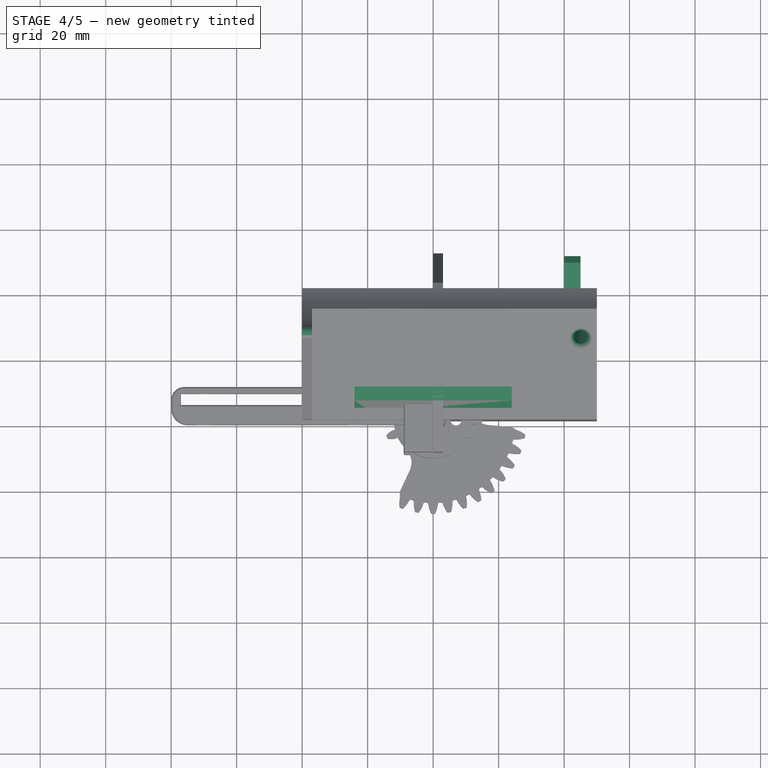
[diagram: stage 4 of 5 — top view after this stage's code; geometry added in this stage tinted green]
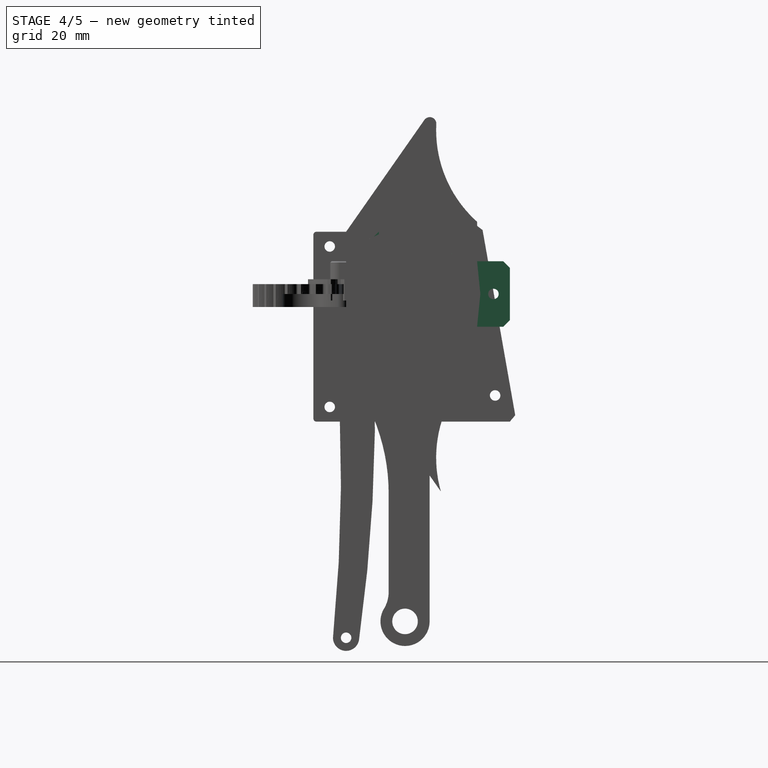
[diagram: stage 4 of 5 — right view after this stage's code; geometry added in this stage tinted green]
FEATURE [Sketcher::SketchObject] Sketch045
  ArcFitTolerance = 0
  ExternalTypes = [0]
  FullyConstrained = true
  MakeInternals = false
  MapMode = 5
  sketch-geometry (13):
    g0: LineSegment StartX=40 StartY=50 StartZ=0 EndX=45 EndY=50 EndZ=0
    g1: LineSegment StartX=45 StartY=50 StartZ=0 EndX=45 EndY=38.2679 EndZ=0
    g2: LineSegment StartX=45 StartY=38.2679 StartZ=0 EndX=37.9808 EndY=34.2154 EndZ=0
    g3: LineSegment StartX=37.9808 StartY=34.2154 StartZ=0 EndX=43.3013 EndY=25 EndZ=0
    g4: LineSegment [constr] StartX=43.3013 StartY=25 StartZ=0 EndX=36.3731 EndY=21 EndZ=0
    g5: LineSegment StartX=36.3731 StartY=21 StartZ=0 EndX=30 EndY=32.0385 EndZ=0
    g6: LineSegment StartX=30 StartY=32.0385 StartZ=0 EndX=30 EndY=40 EndZ=0
    g7: LineSegment StartX=30 StartY=40 StartZ=0 EndX=40 EndY=40 EndZ=0
    g8: LineSegment StartX=40 StartY=40 StartZ=0 EndX=40 EndY=50 EndZ=0
    g9: LineSegment [constr] StartX=0 StartY=0 StartZ=0 EndX=43.3013 EndY=25 EndZ=0
    g10: LineSegment StartX=43.3013 StartY=25 StartZ=0 EndX=48.6218 EndY=15.7846 EndZ=0
    g11: LineSegment StartX=48.6218 StartY=15.7846 StartZ=0 EndX=41.6936 EndY=11.7846 EndZ=0
    g12: LineSegment StartX=41.6936 StartY=11.7846 StartZ=0 EndX=36.3731 EndY=21 EndZ=0
  constraints (37):
    c: Horizontal(g0)
    c: Coincident(g0,g1)
    c: Vertical(g1)
    c: Coincident(g1,g2)
    c: Coincident(g2,g3)
    c: Coincident(g3,g4)
    c: Coincident(g4,g5)
    c: Coincident(g5,g6)
    c: Vertical(g6)
    c: Coincident(g6,g7)
    c: Horizontal(g7)
    c: Coincident(g7,g8)
    c: Coincident(g8,g0)
    c: Vertical(g8)
    c: Equal(g7,g8)
    c: DistanceY(g-1,g6) = 40
    c: DistanceX(g-1,g6) = 30
    c: DistanceX(g7,g7) = 10
    c: Distance(g0,g0) = 5
    c: Perpendicular(g4,g5)
    c: Perpendicular(g3,g4)
    c: Perpendicular(g3,g2)
    c: Angle(g5,g7) = 1.0472
    c: Coincident(g-1,g9)
    c: Coincident(g9,g3)
    c: PointOnObject(g4,g9)
    c: Distance(g9,g9) = 50
    c: Distance(g7,g2) = 4
    c: Distance(g4,g4) = 8
    c: Coincident(g3,g10)
    c: Coincident(g10,g11)
    c: Coincident(g11,g12)
    c: Coincident(g12,g4)
    c: Tangent(g12,g5)
    c: Parallel(g10,g12)
    c: Perpendicular(g10,g11)
    c: Equal(g10,g3)
FEATURE [PartDesign::Pad] Pad026
  Direction = (0,0,1)
  Length = 20
  Length2 = 10
  Profile = -> Sketch045
  ReferenceAxis = -> Sketch045 [N_Axis]
  Refine = true
  SideType = 2
  Suppressed = false
  Type = 0
  Type2 = 0
FEATURE [Sketcher::SketchObject] Sketch046
  ArcFitTolerance = 0
  AttachmentSupport = -> [Pad026]
  ExternalGeometry = -> [Pad026]
  ExternalTypes = [0]
  FullyConstrained = true
  MakeInternals = false
  MapMode = 5
  Placement = pos=(45,0,0) rot=(0.57735,0.57735,0.57735;2.0944rad)
  sketch-geometry (1):
    g0: Circle CenterX=45 CenterY=0 CenterZ=0 NormalX=0 NormalY=0 NormalZ=1 AngleXU=0 Radius=1.6
  constraints (3):
    c: PointOnObject(g0,g-1)
    c: Diameter(g0) = 3.2
    c: DistanceX(g0,g-3) = 5
FEATURE [PartDesign::Pocket] Pocket018
  BaseFeature = -> Pad026
  Direction = (-1,0,0)
  Length = 5
  Length2 = 5
  Profile = -> Sketch046
  ReferenceAxis = -> Sketch046 [N_Axis]
  Refine = true
  SideType = 0
  Suppressed = false
  Type = 1
  Type2 = 0
FEATURE [Sketcher::SketchObject] Sketch047
  ArcFitTolerance = 0
  AttachmentSupport = -> [Pocket018]
  ExternalGeometry = -> [Pocket018]
  ExternalTypes = [0]
  FullyConstrained = true
  MakeInternals = false
  MapMode = 5
  Placement = pos=(45,0,0) rot=(0.57735,0.57735,0.57735;2.0944rad)
  sketch-geometry (1):
    g0: Circle CenterX=45 CenterY=0 CenterZ=0 NormalX=0 NormalY=0 NormalZ=1 AngleXU=0 Radius=4
  constraints (2):
    c: Coincident(g0,g-3)
    c: Diameter(g0) = 8
FEATURE [PartDesign::Pocket] Pocket019
  BaseFeature = -> Pocket018
  Direction = (-1,0,0)
  Length = 2
  Length2 = 5
  Profile = -> Sketch047
  ReferenceAxis = -> Sketch047 [N_Axis]
  Refine = true
  SideType = 0
  Suppressed = false
  Type = 0
  Type2 = 0
FEATURE [PartDesign::Body] Body028
  AllowCompound = true
  Group = -> [Sketch,Pad,Fillet]
  Origin = -> Origin056
  Tip = -> Fillet
FEATURE [App::Part] Part  label="BielleInferieure"
  Group = -> [Body028]
  Origin = -> Origin055
  Placement = pos=(-0.6,31.4,-127.6) rot=(1,0,0;6.17847rad)
FEATURE [Sketcher::SketchObject] Sketch050
  ArcFitTolerance = 1e-06
  AttachmentSupport = -> [YZ_Plane]
  ExternalTypes = [0]
  FullyConstrained = true
  MakeInternals = false
  MapMode = 5
  Placement = pos=(0,0,0) rot=(0.57735,0.57735,0.57735;2.0944rad)
  sketch-geometry (6):
    g0: LineSegment StartX=0 StartY=9 StartZ=0 EndX=0 EndY=-9 EndZ=0
    g1: LineSegment StartX=0 StartY=9 StartZ=0 EndX=5.7735 EndY=19 EndZ=0
    g2: LineSegment StartX=5.7735 StartY=19 StartZ=0 EndX=10 EndY=19 EndZ=0
    g3: LineSegment StartX=10 StartY=19 StartZ=0 EndX=10 EndY=-19 EndZ=0
    g4: LineSegment StartX=10 StartY=-19 StartZ=0 EndX=5.7735 EndY=-19 EndZ=0
    g5: LineSegment StartX=5.7735 StartY=-19 StartZ=0 EndX=0 EndY=-9 EndZ=0
  constraints (16):
    c: PointOnObject(g0,g-2)
    c: Coincident(g1,g0)
    c: Coincident(g2,g1)
    c: Coincident(g3,g2)
    c: Coincident(g4,g3)
    c: Horizontal(g4)
    c: Coincident(g5,g4)
    c: Coincident(g5,g0)
    c: Horizontal(g2)
    c: Symmetric(g0,g0,g-1)
    c: Symmetric(g3,g2,g-1)
    c: Equal(g2,g4)
    c: Angle(g0,g1) = 2.61799
    c: DistanceY(g0,g0) = 18
    c: DistanceX(g-1,g2) = 10
    c: DistanceY(g3,g3) = 38
FEATURE [PartDesign::Pad] Pad028
  AlongSketchNormal = false
  Direction = (1,0,0)
  Length = 48
  Length2 = 10
  Placement = pos=(0,0,0) rot=(1,1,1;2.0944rad)
  Profile = -> Sketch050
  ReferenceAxis = -> Sketch050 [N_Axis]
  Refine = true
  SideType = 2
  Suppressed = false
  Type = 0
  Type2 = 0
FEATURE [Sketcher::SketchObject] Sketch051
  ArcFitTolerance = 1e-06
  AttachmentSupport = -> [Pad028]
  ExternalTypes = [0]
  FullyConstrained = true
  MakeInternals = false
  MapMode = 5
  Placement = pos=(2.2e-15,10,-2.2e-15) rot=(0,0.707107,0.707107;3.14159rad)
  sketch-geometry (9):
    g0: LineSegment [constr] StartX=-5 StartY=-7.5 StartZ=0 EndX=-5 EndY=7.5 EndZ=0
    g1: LineSegment [constr] StartX=-5 StartY=7.5 StartZ=0 EndX=5 EndY=7.5 EndZ=0
    g2: LineSegment [constr] StartX=5 StartY=7.5 StartZ=0 EndX=5 EndY=-7.5 EndZ=0
    g3: LineSegment [constr] StartX=5 StartY=-7.5 StartZ=0 EndX=-5 EndY=-7.5 EndZ=0
    g4: GeomPoint [constr] X=0 Y=0 Z=0
    g5: Circle CenterX=-5 CenterY=7.5 CenterZ=0 NormalX=0 NormalY=0 NormalZ=1 AngleXU=0 Radius=1.6
    g6: Circle CenterX=5 CenterY=7.5 CenterZ=0 NormalX=0 NormalY=0 NormalZ=1 AngleXU=0 Radius=1.6
    g7: Circle CenterX=5 CenterY=-7.5 CenterZ=0 NormalX=0 NormalY=0 NormalZ=1 AngleXU=0 Radius=1.6
    g8: Circle CenterX=-5 CenterY=-7.5 CenterZ=0 NormalX=0 NormalY=0 NormalZ=1 AngleXU=0 Radius=1.6
  constraints (20):
    c: Coincident(g0,g1)
    c: Coincident(g1,g2)
    c: Coincident(g2,g3)
    c: Coincident(g3,g0)
    c: Horizontal(g1)
    c: Horizontal(g3)
    c: Vertical(g0)
    c: Vertical(g2)
    c: Symmetric(g1,g0,g4)
    c: Coincident(g4,g-1)
    c: DistanceX(g1,g1) = 10
    c: DistanceY(g2,g2) = 15
    c: Coincident(g5,g0)
    c: Coincident(g6,g1)
    c: Coincident(g7,g2)
    c: Coincident(g8,g0)
    c: Equal(g5,g8)
    c: Equal(g8,g7)
    c: Diameter(g6) = 3.2
    c: Equal(g5,g6)
FEATURE [PartDesign::Pocket] Pocket
  AlongSketchNormal = false
  BaseFeature = -> Pad028
  Direction = (-2e-16,-1,2e-16)
  Length = 5
  Length2 = 10
  Profile = -> Sketch051
  ReferenceAxis = -> Sketch051 [N_Axis]
  Refine = true
  SideType = 0
  Suppressed = false
  Type = 1
  Type2 = 0
FEATURE [PartDesign::Chamfer] Chamfer
  Angle = 45
  Base = -> Pocket [Edge39,Edge37,Edge28,Edge26]
  BaseFeature = -> Pocket
  ChamferType = 0
  FlipDirection = false
  Refine = true
  Size = 1.6
  Size2 = 1
  SupportTransform = false
  Suppressed = false
  UseAllEdges = false
FEATURE [Sketcher::SketchObject] Sketch052
  ArcFitTolerance = 1e-06
  AttachmentSupport = -> [Chamfer]
  ExternalTypes = [0]
  FullyConstrained = true
  MakeInternals = false
  MapMode = 5
  Placement = pos=(2.2e-15,10,-2.2e-15) rot=(0,0.707107,0.707107;3.14159rad)
  sketch-geometry (6):
    g0: Circle CenterX=-20 CenterY=0 CenterZ=0 NormalX=0 NormalY=0 NormalZ=1 AngleXU=0 Radius=2.1
    g1: Circle CenterX=16.383 CenterY=11.4715 CenterZ=0 NormalX=0 NormalY=0 NormalZ=1 AngleXU=0 Radius=2.1
    g2: Circle CenterX=16.383 CenterY=-11.4715 CenterZ=0 NormalX=0 NormalY=0 NormalZ=1 AngleXU=0 Radius=2.1
    g3: Circle [constr] CenterX=0 CenterY=0 CenterZ=0 NormalX=0 NormalY=0 NormalZ=1 AngleXU=0 Radius=20
    g4: LineSegment [constr] StartX=0 StartY=0 StartZ=0 EndX=16.383 EndY=11.4715 EndZ=0
    g5: LineSegment [constr] StartX=0 StartY=0 StartZ=0 EndX=16.383 EndY=-11.4715 EndZ=0
  constraints (15):
    c: Equal(g0,g2)
    c: Equal(g2,g1)
    c: Diameter(g0) = 4.2
    c: Coincident(g3,g-1)
    c: PointOnObject(g1,g3)
    c: PointOnObject(g2,g3)
    c: Coincident(g4,g3)
    c: Coincident(g5,g3)
    c: Coincident(g5,g2)
    c: Coincident(g1,g4)
    c: Diameter(g3) = 40
    c: PointOnObject(g0,g-1)
    c: PointOnObject(g0,g3)
    c: Vertical(g2,g1)
    c: Angle(g5,g4) = 1.22173
FEATURE [PartDesign::Pocket] Pocket021
  AlongSketchNormal = false
  BaseFeature = -> Chamfer
  Direction = (-2e-16,-1,2e-16)
  Length = 16
  Length2 = 10
  Profile = -> Sketch052
  ReferenceAxis = -> Sketch052 [N_Axis]
  Refine = true
  SideType = 0
  Suppressed = false
  Type = 1
  Type2 = 0
FEATURE [App::DocumentObjectGroup] Group  label="Visserie001"
  Group = -> [Screw019,Nut,Insert,Insert001,Insert002,Screw020,Screw021,Screw022,Screw023]
FEATURE [PartDesign::Pocket] Pocket024
  AlongSketchNormal = false
  BaseFeature = -> Pocket019
  Direction = (-0.5,0.866025,0)
  Length = 6.1
  Length2 = 10
  Profile = -> Pocket019 [Face6]
  Refine = true
  SideType = 0
  Suppressed = false
  Type = 0
  Type2 = 0
FEATURE [PartDesign::Chamfer] Chamfer008
  Angle = 45
  Base = -> Pocket024 [Edge17,Edge11,Edge21,Edge15]
  BaseFeature = -> Pocket024
  ChamferType = 0
  FlipDirection = false
  Refine = true
  Size = 2
  Size2 = 1
  SupportTransform = false
  Suppressed = false
  UseAllEdges = false
FEATURE [PartDesign::Fillet] Fillet014
  Base = -> Chamfer008 [Edge3]
  BaseFeature = -> Chamfer008
  Radius = 10
  Refine = true
  SupportTransform = false
  Suppressed = false
  UseAllEdges = false
FEATURE [PartDesign::Fillet] Fillet015
  Base = -> Fillet014 [Edge42]
  BaseFeature = -> Fillet014
  Radius = 3
  Refine = true
  SupportTransform = false
  Suppressed = false
  UseAllEdges = false
FEATURE [PartDesign::Chamfer] Chamfer009
  Angle = 45
  Base = -> Fillet015 [Edge33]
  BaseFeature = -> Fillet015
  ChamferType = 0
  FlipDirection = false
  Refine = true
  Size = 1
  Size2 = 1
  SupportTransform = false
  Suppressed = false
  UseAllEdges = false
FEATURE [Sketcher::SketchObject] Sketch048
  ArcFitTolerance = 0
  AttachmentSupport = -> [Chamfer009]
  ExternalTypes = [0]
  FullyConstrained = true
  MakeInternals = false
  MapMode = 5
  Placement = pos=(43.3013,25,0) rot=(0.377964,0.654654,0.654654;2.41886rad)
  sketch-geometry (1):
    g0: Circle CenterX=0 CenterY=0 CenterZ=0 NormalX=0 NormalY=0 NormalZ=1 AngleXU=0 Radius=2.1
  constraints (2):
    c: Coincident(g0,g-1)
    c: Diameter(g0) = 4.2
FEATURE [PartDesign::Pocket] Pocket020
  BaseFeature = -> Chamfer009
  Direction = (-0.866025,-0.5,-1e-16)
  Length = 5
  Length2 = 5
  Profile = -> Sketch048
  ReferenceAxis = -> Sketch048 [N_Axis]
  Refine = true
  SideType = 0
  Suppressed = false
  Type = 1
  Type2 = 0
FEATURE [PartDesign::Chamfer] Chamfer010
  Angle = 45
  Base = -> Pocket020 [Edge48,Edge38]
  BaseFeature = -> Pocket020
  ChamferType = 0
  FlipDirection = false
  Refine = true
  Size = 0.6
  Size2 = 1
  SupportTransform = false
  Suppressed = false
  UseAllEdges = false
FEATURE [PartDesign::Fillet] Fillet018
  Base = -> Pocket025 [Edge23]
  BaseFeature = -> Pocket025
  Placement = pos=(0,0,0) rot=(1,1,1;2.0944rad)
  Radius = 2
  Refine = true
  SupportTransform = false
  Suppressed = false
  UseAllEdges = false
FEATURE [Sketcher::SketchObject] Sketch057
  ArcFitTolerance = 1e-06
  AttachmentSupport = -> [Fillet018]
  ExternalGeometry = -> [Fillet018]
  ExternalTypes = [0]
  FullyConstrained = false
  MakeInternals = false
  MapMode = 5
  Placement = pos=(-5.3e-15,-5.23001,10.9662) rot=(1,0,0;0.445016rad)
  sketch-geometry (10):
    g0: Circle CenterX=45 CenterY=33.0277 CenterZ=0 NormalX=0 NormalY=0 NormalZ=1 AngleXU=0 Radius=2.3
    g1: LineSegment [constr] StartX=37.3751 StartY=40.4006 StartZ=0 EndX=37.6271 EndY=25.4028 EndZ=0
    g2: LineSegment [constr] StartX=37.6271 StartY=25.4028 StartZ=0 EndX=52.6249 EndY=25.6547 EndZ=0
    g3: LineSegment [constr] StartX=52.6249 StartY=25.6547 StartZ=0 EndX=52.3729 EndY=40.6526 EndZ=0
    g4: LineSegment [constr] StartX=52.3729 StartY=40.6526 StartZ=0 EndX=37.3751 EndY=40.4006 EndZ=0
    g5: Circle [constr] CenterX=45 CenterY=33.0277 CenterZ=0 NormalX=0 NormalY=0 NormalZ=1 AngleXU=0 Radius=10.6066
    g6: LineSegment [constr] StartX=-22.6165 StartY=39.3927 StartZ=0 EndX=37.3751 EndY=40.4006 EndZ=0
    g7: LineSegment [constr] StartX=37.3751 StartY=40.4006 StartZ=0 EndX=37.6271 EndY=25.4028 EndZ=0
    g8: LineSegment [constr] StartX=37.6271 StartY=25.4028 StartZ=0 EndX=-22.3645 EndY=24.3948 EndZ=0
    g9: LineSegment [constr] StartX=-22.3645 StartY=24.3948 StartZ=0 EndX=-22.6165 EndY=39.3927 EndZ=0
  constraints (26):
    c: Diameter(g0) = 4.6
    c: Coincident(g1,g2)
    c: Coincident(g2,g3)
    c: Coincident(g3,g4)
    c: Coincident(g4,g1)
    c: Equal(g1,g2)
    c: Equal(g1,g3)
    c: Equal(g1,g4)
    c: PointOnObject(g1,g5)
    c: PointOnObject(g2,g5)
    c: PointOnObject(g3,g5)
    c: PointOnObject(g4,g5)
    c: Coincident(g5,g0)
    c: Coincident(g6,g7)
    c: Coincident(g7,g8)
    c: Coincident(g8,g9)
    c: Coincident(g9,g6)
    c: Parallel(g6,g8)
    c: Parallel(g7,g9)
    c: Perpendicular(g7,g6)
    c: Coincident(g6,g1)
    c: Coincident(g1,g7)
    c: Distance(g3) = 15
    c: Distance(g6) = 60
    c: DistanceX(g0,g-3) = 5
    c: DistanceY(g0,g-3) = 10
FEATURE [PartDesign::Pocket] Pocket026
  AlongSketchNormal = false
  BaseFeature = -> Fillet018
  Direction = (4e-16,0.430473,-0.902604)
  Length = 15
  Length2 = 10
  Profile = -> Sketch057
  ReferenceAxis = -> Sketch057 [N_Axis]
  Refine = true
  SideType = 0
  Suppressed = false
  Type = 0
  Type2 = 0
FEATURE [PartDesign::Chamfer] Chamfer013
  Angle = 45
  Base = -> Pocket026 [Edge29]
  BaseFeature = -> Pocket026
  ChamferType = 0
  FlipDirection = false
  Refine = true
  Size = 1
  Size2 = 1
  SupportTransform = false
  Suppressed = false
  UseAllEdges = false
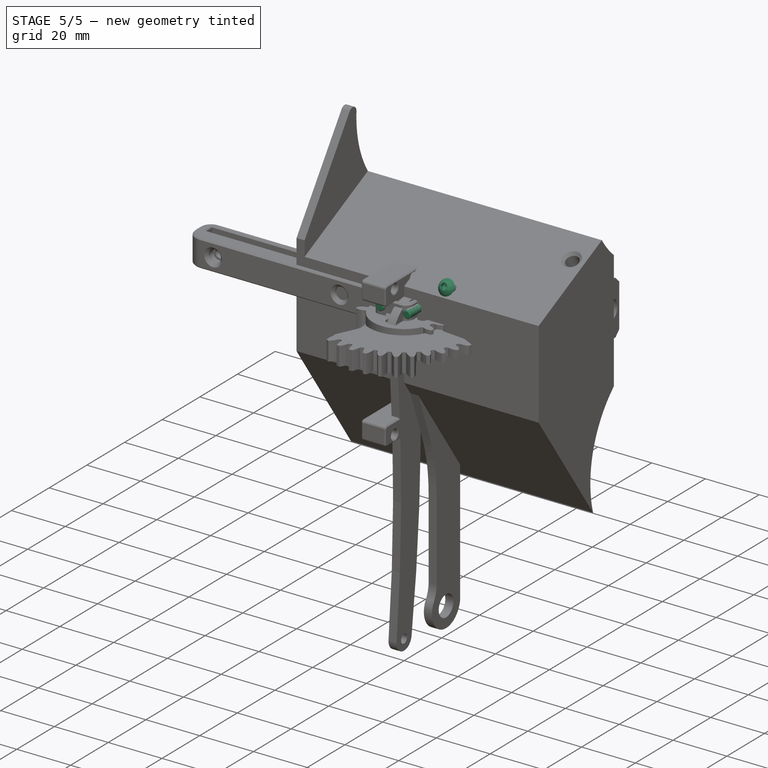
[diagram: stage 5 of 5 — iso view after this stage's code; geometry added in this stage tinted green]
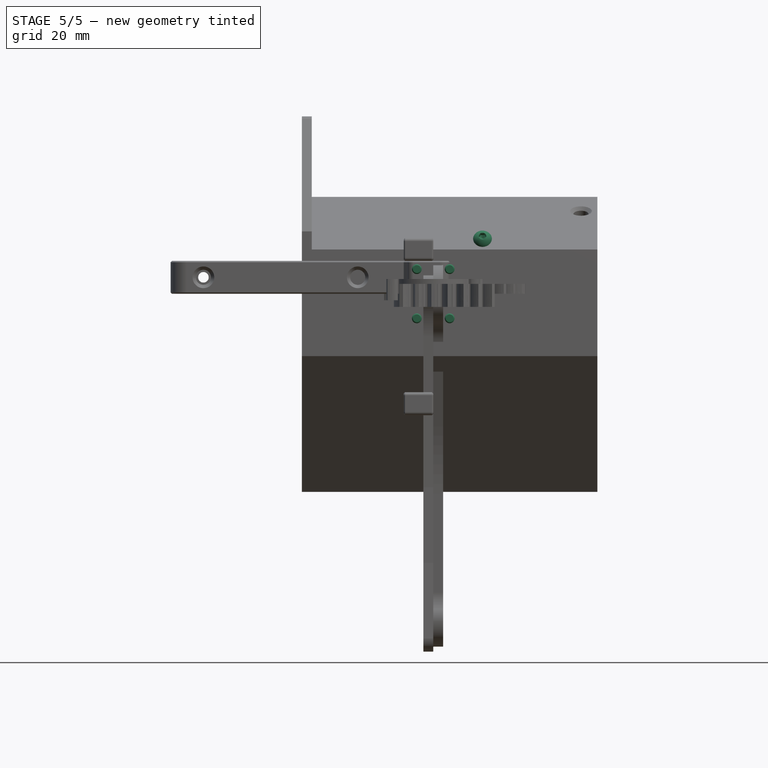
[diagram: stage 5 of 5 — front view after this stage's code; geometry added in this stage tinted green]
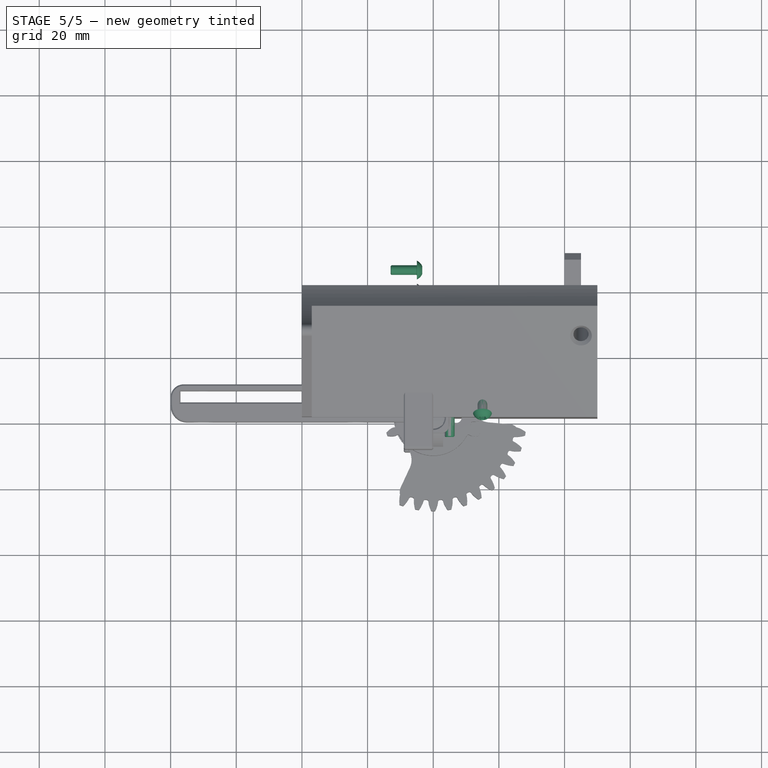
[diagram: stage 5 of 5 — top view after this stage's code; geometry added in this stage tinted green]
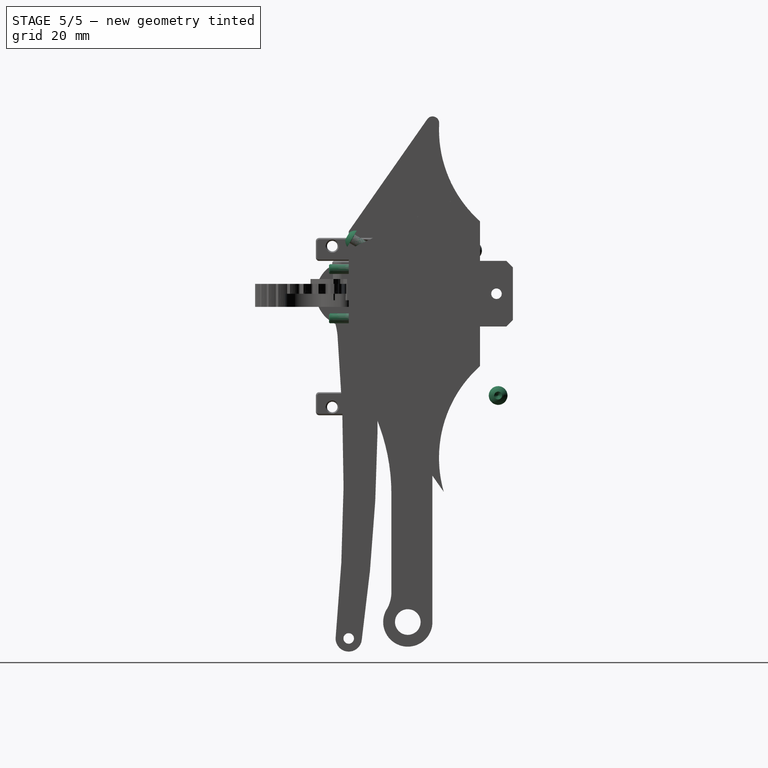
[diagram: stage 5 of 5 — right view after this stage's code; geometry added in this stage tinted green]
FEATURE [Part::FeaturePython] Screw016  label="M3x8-Vis"  # WARN: FeaturePython — macro-defined, semantics opaque (R4)
  BaseObject = -> Body024 [Edge57]
  Diameter = 1
  Invert = false
  LeftHanded = false
  Length = 1
  LengthCustom = 8
  MatchOuter = false
  OffsetAngle = 0
  Placement = pos=(-5,37.7251,13.1632) rot=(0,1,0;1.5708rad)
  Thread = false
  Type = 84
FEATURE [Part::FeaturePython] Screw017  label="M3x8-Vis001"  # WARN: FeaturePython — macro-defined, semantics opaque (R4)
  BaseObject = -> Body024 [Edge55]
  Diameter = 1
  Invert = false
  LeftHanded = false
  Length = 1
  LengthCustom = 8
  MatchOuter = false
  OffsetAngle = 0
  Placement = pos=(-5,18,11.4374) rot=(0,1,0;1.5708rad)
  Thread = false
  Type = 84
FEATURE [Part::FeaturePython] Screw018  label="M3x8-Vis002"  # WARN: FeaturePython — macro-defined, semantics opaque (R4)
  BaseObject = -> Body024 [Edge47]
  Diameter = 1
  Invert = false
  LeftHanded = false
  Length = 1
  LengthCustom = 8
  MatchOuter = false
  OffsetAngle = 0
  Placement = pos=(-5,45.5123,-31) rot=(0,1,0;1.5708rad)
  Thread = false
  Type = 84
FEATURE [PartDesign::Body] Body027  label="Bielle"
  AllowCompound = true
  Group = -> [Sketch049,Pad027,Fillet016,Fillet017]
  Origin = -> Origin049
  Tip = -> Fillet017
FEATURE [App::Link] Link040  label="Bielle001"
  LinkPlacement = pos=(3,-3.8147e-06,0) rot=(0,0,1;0rad)
  LinkedObject = -> Body027
  Placement = pos=(3,-3.8147e-06,0) rot=(0,0,1;0rad)
FEATURE [App::Link] Link  label="MG996"
  LinkPlacement = pos=(-7.6294e-06,1.90735e-06,-3.05176e-05) rot=(0.707107,0,0.707107;3.14159rad)
  LinkedObject = -> <external ../mechanical-parts/generic-hardware.FCStd>#Part015
  Placement = pos=(-7.6294e-06,1.90735e-06,-3.05176e-05) rot=(0.707107,0,0.707107;3.14159rad)
FEATURE [App::Link] Link041  label="RoundServoHorn"
  LinkPlacement = pos=(2.274e-13,-5.72205e-06,3.05176e-05) rot=(0.171088,0.970288,0.171088;1.60095rad)
  LinkedObject = -> <external ../mechanical-parts/generic-hardware.FCStd>#Body042
  Placement = pos=(2.274e-13,-5.72205e-06,3.05176e-05) rot=(0.171088,0.970288,0.171088;1.60095rad)
FEATURE [App::Link] Link042  label="MF083-001"
  LinkPlacement = pos=(-2.2769e-05,18,-100) rot=(0,0,1;1.5708rad)
  LinkedObject = -> <external ../mechanical-parts/generic-hardware.FCStd>#Part034
  Placement = pos=(-2.2769e-05,18,-100) rot=(0,0,1;1.5708rad)
FEATURE [App::Link] Link043  label="MGN9-200mm"
  LinkPlacement = pos=(55.9666,32.8897,2.46922) rot=(0.447214,0.774597,-0.447214;1.82348rad)
  LinkedObject = -> <external ../mechanical-parts/generic-hardware.FCStd>#Body112
  Placement = pos=(55.9666,32.8897,2.46922) rot=(0.447214,0.774597,-0.447214;1.82348rad)
FEATURE [App::Link] Link044  label="mgn9c001"
  LinkPlacement = pos=(8.01086e-05,-7.99998,1.62202e-06) rot=(1.125,0,0;0rad)
  LinkedObject = -> <external ../mechanical-parts/generic-hardware.FCStd>#Part__Feature001
  Placement = pos=(8.01086e-05,-7.99998,1.62202e-06) rot=(1.125,0,0;0rad)
FEATURE [App::Link] Link045  label="MF083-002"
  LinkPlacement = pos=(6,18,-100) rot=(0,0,-1;1.5708rad)
  LinkedObject = -> Link042
  Placement = pos=(6,18,-100) rot=(0,0,-1;1.5708rad)
FEATURE [Part::FeaturePython] Screw  label="M3x8-Vis003"  # WARN: FeaturePython — macro-defined, semantics opaque (R4)
  BaseObject = -> Body024 [Edge43]
  Diameter = 1
  Invert = false
  LeftHanded = false
  Length = 1
  LengthCustom = 8
  MatchOuter = false
  OffsetAngle = 0
  Placement = pos=(-5,18,-31) rot=(0,1,0;1.5708rad)
  Thread = false
  Type = 84
FEATURE [PartDesign::Chamfer] Chamfer011
  Angle = 45
  Base = -> Pocket021 [Edge39,Edge38,Edge53,Edge52]
  BaseFeature = -> Pocket021
  ChamferType = 0
  FlipDirection = false
  Refine = true
  Size = 4
  Size2 = 1
  SupportTransform = false
  Suppressed = false
  UseAllEdges = false
FEATURE [PartDesign::Chamfer] Chamfer012
  Angle = 45
  Base = -> Chamfer011 [Edge49,Edge52,Edge43,Edge31]
  BaseFeature = -> Chamfer011
  ChamferType = 0
  FlipDirection = false
  Refine = true
  Size = 1
  Size2 = 1
  SupportTransform = false
  Suppressed = false
  UseAllEdges = false
FEATURE [Sketcher::SketchObject] Sketch053
  ArcFitTolerance = 1e-06
  AttachmentSupport = -> [Chamfer012]
  ExternalTypes = [0]
  FullyConstrained = true
  MakeInternals = false
  MapMode = 5
  Placement = pos=(-1.5e-15,-3.89711,2.25) rot=(1,0,0;1.0472rad)
  sketch-geometry (1):
    g0: Circle CenterX=15 CenterY=15 CenterZ=0 NormalX=0 NormalY=0 NormalZ=1 AngleXU=0 Radius=1.6
  constraints (3):
    c: DistanceX(g0) = 15
    c: DistanceY(g0) = 15
    c: Diameter(g0) = 3.2
FEATURE [PartDesign::Pocket] Pocket022
  AlongSketchNormal = false
  BaseFeature = -> Chamfer012
  Direction = (3e-16,0.866025,-0.5)
  Length = 5
  Length2 = 10
  Profile = -> Sketch053
  ReferenceAxis = -> Sketch053 [N_Axis]
  Refine = true
  SideType = 0
  Suppressed = false
  Type = 1
  Type2 = 0
FEATURE [PartDesign::Plane] DatumPlane
  AttachmentOffset = pos=(0,0,-3) rot=(0,0,1;0rad)
  AttachmentSupport = -> [Pocket022]
  Length = 61.6877
  MapMode = 5
  Placement = pos=(-1.5e-15,-1.29904,0.75) rot=(1,0,0;1.0472rad)
  ResizeMode = 0
  Width = 79.989
FEATURE [Sketcher::SketchObject] Sketch054
  ArcFitTolerance = 1e-06
  AttachmentSupport = -> [DatumPlane]
  ExternalGeometry = -> [Pocket022]
  ExternalTypes = [0]
  FullyConstrained = true
  MakeInternals = false
  MapMode = 5
  Placement = pos=(-1.5e-15,-1.29904,0.75) rot=(1,0,0;1.0472rad)
  sketch-geometry (7):
    g0: LineSegment StartX=11.8246 StartY=15 StartZ=0 EndX=13.4123 EndY=12.25 EndZ=0
    g1: LineSegment StartX=13.4123 StartY=12.25 StartZ=0 EndX=16.5877 EndY=12.25 EndZ=0
    g2: LineSegment StartX=16.5877 StartY=12.25 StartZ=0 EndX=18.1754 EndY=15 EndZ=0
    g3: LineSegment StartX=18.1754 StartY=15 StartZ=0 EndX=16.5877 EndY=17.75 EndZ=0
    g4: LineSegment StartX=16.5877 StartY=17.75 StartZ=0 EndX=13.4123 EndY=17.75 EndZ=0
    g5: LineSegment StartX=13.4123 StartY=17.75 StartZ=0 EndX=11.8246 EndY=15 EndZ=0
    g6: Circle [constr] CenterX=15 CenterY=15 CenterZ=0 NormalX=0 NormalY=0 NormalZ=1 AngleXU=0 Radius=3.17543
  constraints (16):
    c: Coincident(g0,g1)
    c: Coincident(g1,g2)
    c: Coincident(g2,g3)
    c: Coincident(g3,g4)
    c: Coincident(g4,g5)
    c: Coincident(g5,g0)
    c: Equal(g0, g1-g5) x5
    c: PointOnObject(g0,g6)
    c: PointOnObject(g1,g6)
    c: PointOnObject(g2,g6)
    c: PointOnObject(g3,g6)
    c: PointOnObject(g4,g6)
    c: PointOnObject(g5,g6)
    c: Coincident(g6,g-3)
    c: Horizontal(g4)
    c: DistanceY(g0,g4) = 5.5
FEATURE [PartDesign::Pocket] Pocket023
  AlongSketchNormal = false
  BaseFeature = -> Pocket022
  Direction = (3e-16,0.866025,-0.5)
  Length = 5
  Length2 = 10
  Profile = -> Sketch054
  ReferenceAxis = -> Sketch054 [N_Axis]
  Refine = true
  SideType = 0
  Suppressed = false
  Type = 1
  Type2 = 0
FEATURE [PartDesign::Body] Body  label="Chariot"
  AllowCompound = true
  Group = -> [Sketch050,Pad028,Sketch051,Pocket,Chamfer,Sketch052,Pocket021,Chamfer011,Chamfer012,Sketch053,Pocket022,DatumPlane,Sketch054,Pocket023]
  Origin = -> Origin
  Tip = -> Pocket023
FEATURE [Part::FeaturePython] Screw019  label="M3x10-Vis"  # WARN: FeaturePython — macro-defined, semantics opaque (R4)
  BaseObject = -> Body [Edge31]
  Diameter = 1
  Invert = false
  LeftHanded = false
  Length = 2
  LengthCustom = 10
  MatchOuter = false
  Offset = 3
  OffsetAngle = 0
  Placement = pos=(15,1.00481,16.7404) rot=(1,0,0;1.0472rad)
  Thread = false
  Type = 84
FEATURE [Part::FeaturePython] Nut  label="M3-Écrou"  # WARN: FeaturePython — macro-defined, semantics opaque (R4)
  BaseObject = -> Body [Edge76]
  Diameter = 1
  Invert = true
  LeftHanded = false
  MatchOuter = false
  OffsetAngle = 0
  Placement = pos=(15,6.20096,13.7404) rot=(-1,0,0;2.0944rad)
  Thread = false
  Type = 21
FEATURE [Part::FeaturePython] Insert  label="M3x5.74-Insert"  # WARN: FeaturePython — macro-defined, semantics opaque (R4)
  BaseObject = -> Body [Edge78]
  Diameter = 3
  ExternalDiam = 4.55
  Invert = false
  LeftHanded = false
  Length = 5.74
  MatchOuter = false
  OffsetAngle = 0
  Placement = pos=(-16.383,9,11.4715) rot=(-1,0,0;1.5708rad)
  Thread = false
  Type = 0
FEATURE [Part::FeaturePython] Insert001  label="M3x5.74-Insert007"  # WARN: FeaturePython — macro-defined, semantics opaque (R4)
  BaseObject = -> Body [Edge52]
  Diameter = 3
  ExternalDiam = 4.55
  Invert = false
  LeftHanded = false
  Length = 5.74
  MatchOuter = false
  OffsetAngle = 0
  Placement = pos=(20,9,2e-16) rot=(-1,0,0;1.5708rad)
  Thread = false
  Type = 0
FEATURE [Part::FeaturePython] Insert002  label="M3x5.74-Insert008"  # WARN: FeaturePython — macro-defined, semantics opaque (R4)
  BaseObject = -> Body [Edge81]
  Diameter = 3
  ExternalDiam = 4.55
  Invert = false
  LeftHanded = false
  Length = 5.74
  MatchOuter = false
  OffsetAngle = 0
  Placement = pos=(-16.383,9,-11.4715) rot=(-1,0,0;1.5708rad)
  Thread = false
  Type = 0
FEATURE [Part::FeaturePython] Screw020  label="M3x16-Vis"  # WARN: FeaturePython — macro-defined, semantics opaque (R4)
  BaseObject = -> Body [Edge66]
  Diameter = 3
  Invert = false
  LeftHanded = false
  Length = 3
  LengthCustom = 16
  MatchOuter = false
  OffsetAngle = 0
  Placement = pos=(5,10,7.5) rot=(-1,0,0;1.5708rad)
  Thread = false
  Type = 50
FEATURE [Part::FeaturePython] Screw021  label="M3x16-Vis010"  # WARN: FeaturePython — macro-defined, semantics opaque (R4)
  BaseObject = -> Body [Edge69]
  Diameter = 3
  Invert = false
  LeftHanded = false
  Length = 3
  LengthCustom = 16
  MatchOuter = false
  OffsetAngle = 0
  Placement = pos=(-5,10,7.5) rot=(-1,0,0;1.5708rad)
  Thread = false
  Type = 50
FEATURE [Part::FeaturePython] Screw022  label="M3x16-Vis011"  # WARN: FeaturePython — macro-defined, semantics opaque (R4)
  BaseObject = -> Body [Edge71]
  Diameter = 3
  Invert = false
  LeftHanded = false
  Length = 3
  LengthCustom = 16
  MatchOuter = false
  OffsetAngle = 0
  Placement = pos=(-5,10,-7.5) rot=(-1,0,0;1.5708rad)
  Thread = false
  Type = 50
FEATURE [Part::FeaturePython] Screw023  label="M3x16-Vis012"  # WARN: FeaturePython — macro-defined, semantics opaque (R4)
  BaseObject = -> Body [Edge68]
  Diameter = 3
  Invert = false
  LeftHanded = false
  Length = 3
  LengthCustom = 16
  MatchOuter = false
  OffsetAngle = 0
  Placement = pos=(5,10,-7.5) rot=(-1,0,0;1.5708rad)
  Thread = false
  Type = 50
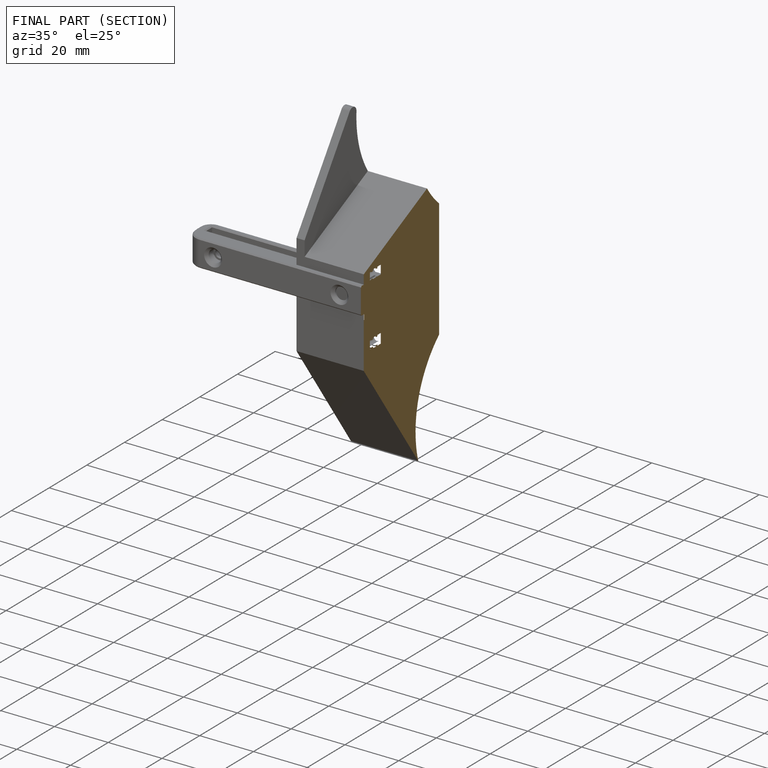
[diagram: finished part — half-section view (interior)]
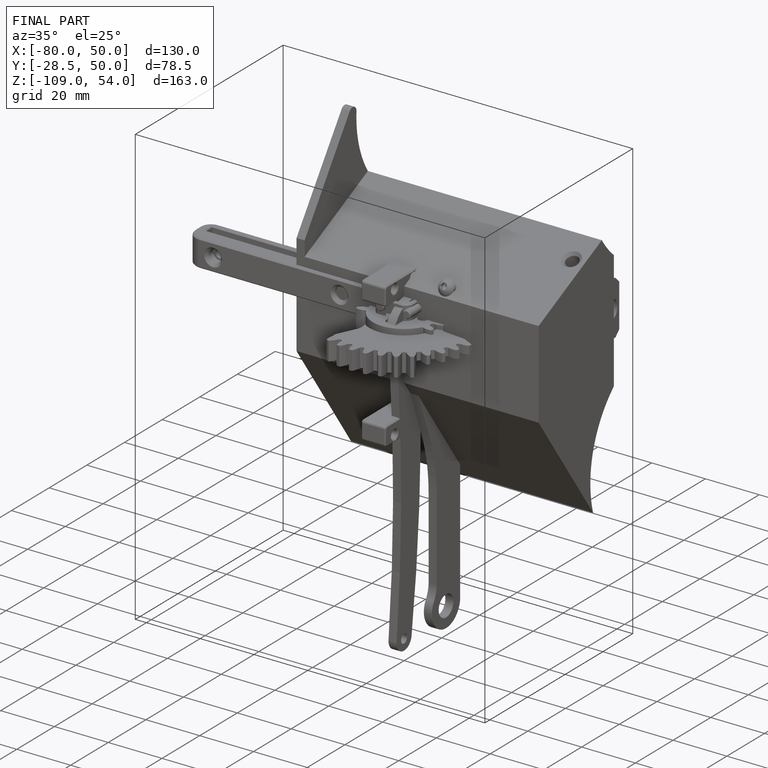
[diagram: finished part — iso view with bounding-box wireframe]
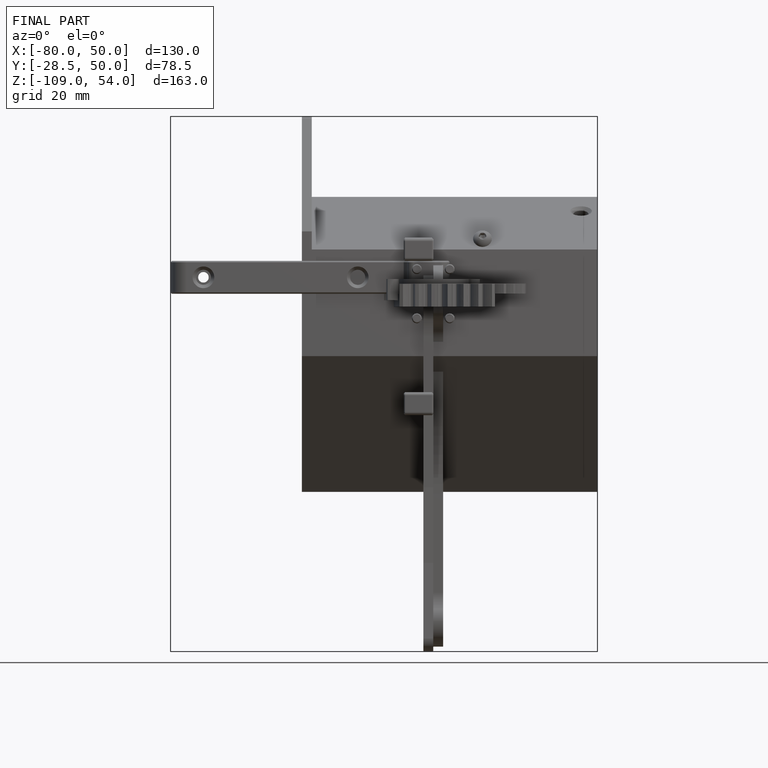
[diagram: finished part — front view with bounding-box wireframe]
